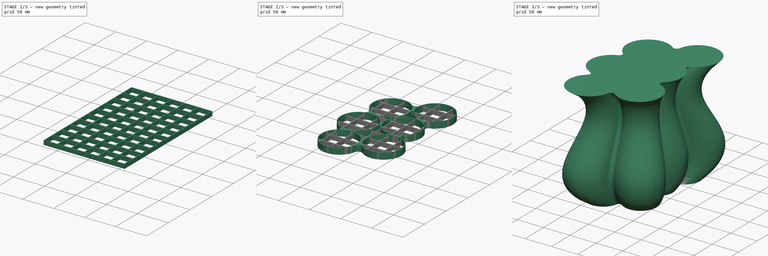
[diagram: build sequence overview — one tinted view per stage of 3, left to right]
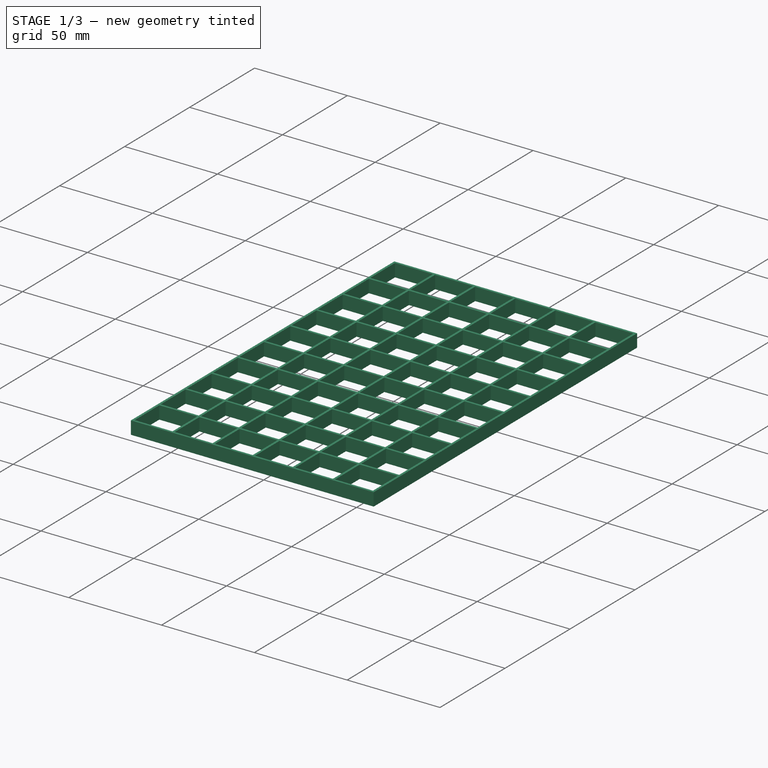
[diagram: stage 1 of 3 — iso view after this stage's code; geometry added in this stage tinted green]
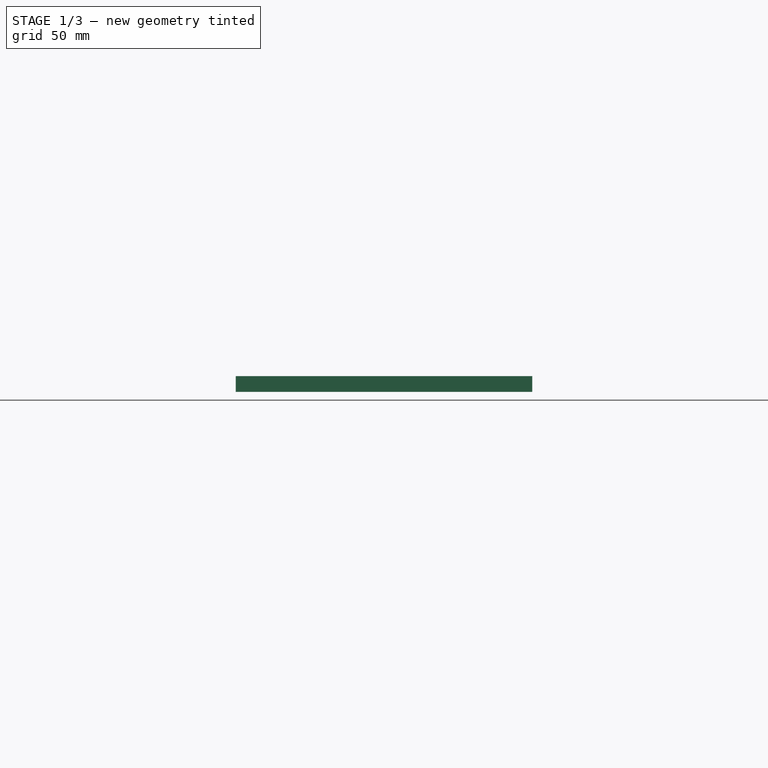
[diagram: stage 1 of 3 — front view after this stage's code; geometry added in this stage tinted green]
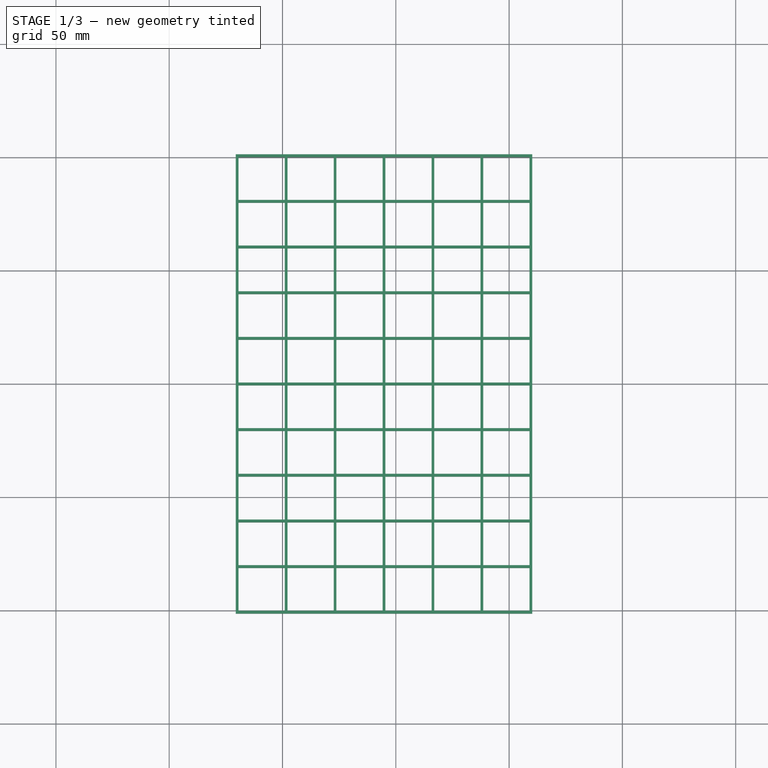
[diagram: stage 1 of 3 — top view after this stage's code; geometry added in this stage tinted green]
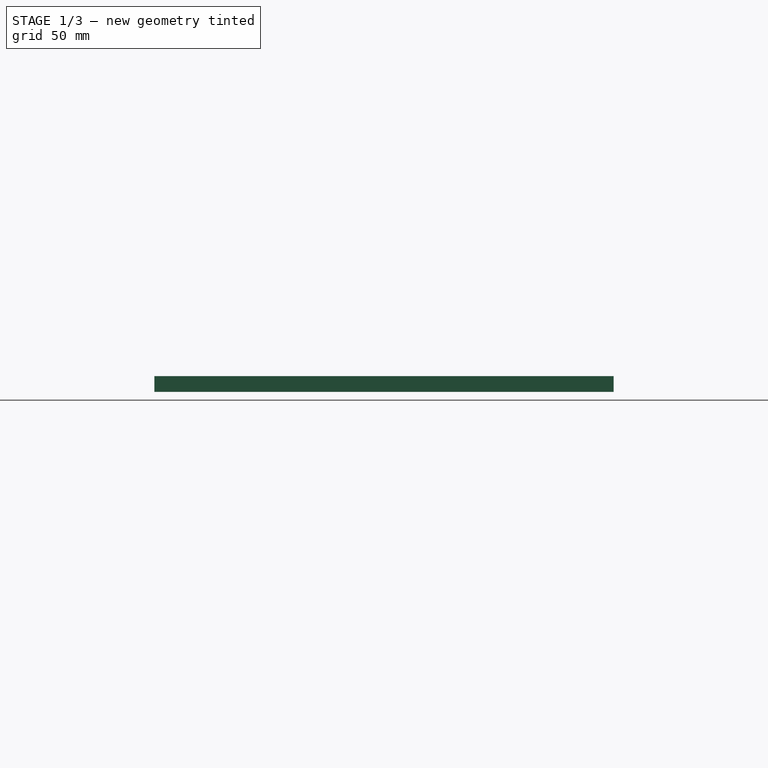
[diagram: stage 1 of 3 — right view after this stage's code; geometry added in this stage tinted green]
FCSTD DOCUMENT  (FreeCAD 0.21R33771 (Git))
Label: Vase
License: All rights reserved
LicenseURL: http://en.wikipedia.org/wiki/All_rights_reserved
objects: Sketcher::SketchObject×13, PartDesign::Body×4, PartDesign::AdditiveLoft×2, PartDesign::ShapeBinder×2, PartDesign::Pad×2, PartDesign::Pocket×2, PartDesign::LinearPattern×2, Spreadsheet::Sheet×1, PartDesign::Fillet×1, PartDesign::MultiTransform×1
note: 36 computed .brp shape members not serialized (recipe doc carries the construction recipe); baked Part::Feature solids carry a one-line shape summary decoded from their .brp

FEATURE [PartDesign::Body] Body002  label="V2Lock"
  Group = -> [ShapeBinder,Sketch009,Pad]
  Origin = -> Origin
  Tip = -> Pad
FEATURE [PartDesign::ShapeBinder] ShapeBinder001
  Support = -> [Sketch005]
  TraceSupport = false
FEATURE [Sketcher::SketchObject] Sketch011
  ExternalGeometry = -> [ShapeBinder001]
  FullyConstrained = true
  MapMode = 5
  Support = -> [XY_Plane]
  sketch-geometry (12):
    g0: LineSegment StartX=-68.6097 StartY=99.3491 StartZ=0 EndX=58.1908 EndY=99.3491 EndZ=0
    g1: LineSegment StartX=58.1908 StartY=99.3491 StartZ=0 EndX=58.1908 EndY=-99.3491 EndZ=0
    g2: LineSegment StartX=58.1908 StartY=-99.3491 StartZ=0 EndX=-68.6097 EndY=-99.3491 EndZ=0
    g3: LineSegment StartX=-68.6097 StartY=-99.3491 StartZ=0 EndX=-68.6097 EndY=99.3491 EndZ=0
    g4: LineSegment StartX=-70.6097 StartY=101.349 StartZ=0 EndX=60.1908 EndY=101.349 EndZ=0
    g5: LineSegment StartX=60.1908 StartY=101.349 StartZ=0 EndX=60.1908 EndY=-101.349 EndZ=0
    g6: LineSegment StartX=60.1908 StartY=-101.349 StartZ=0 EndX=-70.6097 EndY=-101.349 EndZ=0
    g7: LineSegment StartX=-70.6097 StartY=-101.349 StartZ=0 EndX=-70.6097 EndY=101.349 EndZ=0
    g8: LineSegment StartX=58.1908 StartY=-99.3491 StartZ=0 EndX=60.1908 EndY=-99.3491 EndZ=0
    g9: LineSegment StartX=58.1908 StartY=99.3491 StartZ=0 EndX=58.1908 EndY=101.349 EndZ=0
    g10: LineSegment StartX=-68.6097 StartY=-99.3491 StartZ=0 EndX=-68.6097 EndY=-101.349 EndZ=0
    g11: LineSegment StartX=-68.6097 StartY=99.3491 StartZ=0 EndX=-70.6097 EndY=99.3491 EndZ=0
  constraints (38):
    c: Coincident(g0,g1)
    c: Coincident(g1,g2)
    c: Coincident(g2,g3)
    c: Coincident(g3,g0)
    c: Horizontal(g0)
    c: Horizontal(g2)
    c: Vertical(g1)
    c: Vertical(g3)
    c: Tangent(g1,g-3)
    c: Tangent(g0,g-3)
    c: Tangent(g3,g-5)
    c: Tangent(g2,g-4)
    c: Coincident(g4,g5)
    c: Coincident(g5,g6)
    c: Coincident(g6,g7)
    c: Coincident(g7,g4)
    c: Horizontal(g4)
    c: Horizontal(g6)
    c: Vertical(g5)
    c: Vertical(g7)
    c: Coincident(g8,g1)
    c: PointOnObject(g8,g5)
    c: Horizontal(g8)
    c: Coincident(g9,g0)
    c: PointOnObject(g9,g4)
    c: Vertical(g9)
    c: Equal(g9,g8)
    c: Coincident(g10,g2)
    c: PointOnObject(g10,g6)
    c: Vertical(g10)
    c: Coincident(g11,g0)
    c: PointOnObject(g11,g7)
    c: Horizontal(g11)
    c: Equal(g8,g10)
    c: Equal(g10,g11)
    c: DistanceX(g4,g0) = 2
    c: DistanceX(g4,g4) = 130.8  'Width'
    c: DistanceY(g7,g7) = 202.698  'Length'
FEATURE [Sketcher::SketchObject] Sketch010
  AttachmentOffset = pos=(0,0,7) rot=(0,0,1;0rad)
  ExternalGeometry = -> [ShapeBinder001,Sketch011]
  FullyConstrained = true
  MapMode = 5
  Placement = pos=(0,0,7) rot=(0,0,1;0rad)
  Support = -> [XY_Plane]
  expr: .AttachmentOffset.Base.z = <<Pad002>>.Length
  sketch-geometry (28):
    g0: ArcOfCircle CenterX=-28.1908 CenterY=-69.3491 CenterZ=0 NormalX=0 NormalY=0 NormalZ=1 AngleXU=0 Radius=29 StartAngle=2.28643 EndAngle=6.09115
    g1: ArcOfCircle CenterX=28.1908 CenterY=-48.8279 CenterZ=0 NormalX=0 NormalY=0 NormalZ=1 AngleXU=0 Radius=29 StartAngle=4.03176 EndAngle=7.48742
    g2: ArcOfCircle CenterX=6.16586 CenterY=-76.029 CenterZ=0 NormalX=0 NormalY=0 NormalZ=1 AngleXU=0 Radius=6 StartAngle=0.890165 EndAngle=2.94956
    g3: ArcOfCircle CenterX=-38.6097 CenterY=-10.2606 CenterZ=0 NormalX=0 NormalY=0 NormalZ=1 AngleXU=0 Radius=29 StartAngle=1.93736 EndAngle=4.34582
    g4: ArcOfCircle CenterX=-28.1908 CenterY=48.8279 CenterZ=0 NormalX=0 NormalY=0 NormalZ=1 AngleXU=0 Radius=29 StartAngle=0.890165 EndAngle=3.99676
    g5: ArcOfCircle CenterX=28.1908 CenterY=69.3491 CenterZ=0 NormalX=0 NormalY=0 NormalZ=1 AngleXU=0 Radius=29 StartAngle=5.07896 EndAngle=9.23274
    g6: ArcOfCircle CenterX=17.7719 CenterY=10.2606 CenterZ=0 NormalX=0 NormalY=0 NormalZ=1 AngleXU=0 Radius=29 StartAngle=5.42802 EndAngle=7.13835
    g7: ArcOfCircle CenterX=-51.1541 CenterY=-42.9353 CenterZ=0 NormalX=0 NormalY=0 NormalZ=1 AngleXU=0 Radius=6 StartAngle=5.42802 EndAngle=7.48742
    g8: ArcOfCircle CenterX=-51.1541 CenterY=22.4141 CenterZ=0 NormalX=0 NormalY=0 NormalZ=1 AngleXU=0 Radius=6 StartAngle=5.07896 EndAngle=7.13835
    g9: ArcOfCircle CenterX=-6.16586 CenterY=76.029 CenterZ=0 NormalX=0 NormalY=0 NormalZ=1 AngleXU=0 Radius=6 StartAngle=4.03176 EndAngle=6.09115
    g10: ArcOfCircle CenterX=40.7352 CenterY=36.6743 CenterZ=0 NormalX=0 NormalY=0 NormalZ=1 AngleXU=0 Radius=6 StartAngle=1.93736 EndAngle=3.99676
    g11: ArcOfCircle CenterX=40.7352 CenterY=-16.1531 CenterZ=0 NormalX=0 NormalY=0 NormalZ=1 AngleXU=0 Radius=6 StartAngle=2.28643 EndAngle=4.34582
    g12: LineSegment StartX=36.7986 StartY=-11.6251 StartZ=0 EndX=37.4547 EndY=-12.3797 EndZ=0
    g13: LineSegment StartX=-47.8736 StartY=-46.7087 StartZ=0 EndX=-47.2175 EndY=-47.4634 EndZ=0
    g14: LineSegment StartX=0.276147 StartY=-74.8839 StartZ=0 EndX=1.25777 EndY=-75.0747 EndZ=0
    g15: LineSegment StartX=9.94156 StartY=-71.366 StartZ=0 EndX=9.31227 EndY=-72.1431 EndZ=0
    g16: LineSegment StartX=38.9431 StartY=-20.821 StartZ=0 EndX=38.5847 EndY=-21.7545 EndZ=0
    g17: LineSegment StartX=-49.362 StartY=-38.2675 StartZ=0 EndX=-49.0036 EndY=-37.3339 EndZ=0
    g18: LineSegment StartX=-49.362 StartY=17.7463 StartZ=0 EndX=-49.0036 EndY=16.8127 EndZ=0
    g19: LineSegment StartX=-47.8736 StartY=26.1875 StartZ=0 EndX=-47.2175 EndY=26.9422 EndZ=0
    g20: LineSegment StartX=-72.6097 StartY=103.349 StartZ=0 EndX=62.1908 EndY=103.349 EndZ=0
    g21: LineSegment StartX=62.1908 StartY=103.349 StartZ=0 EndX=62.1908 EndY=-103.349 EndZ=0
    g22: LineSegment StartX=62.1908 StartY=-103.349 StartZ=0 EndX=-72.6097 EndY=-103.349 EndZ=0
    g23: LineSegment StartX=-72.6097 StartY=-103.349 StartZ=0 EndX=-72.6097 EndY=103.349 EndZ=0
    g24: LineSegment StartX=60.1908 StartY=-101.349 StartZ=0 EndX=62.1908 EndY=-101.349 EndZ=0
    g25: LineSegment StartX=60.1908 StartY=101.349 StartZ=0 EndX=60.1908 EndY=103.349 EndZ=0
    g26: LineSegment StartX=-70.6097 StartY=101.349 StartZ=0 EndX=-72.6097 EndY=101.349 EndZ=0
    g27: LineSegment StartX=-70.6097 StartY=-101.349 StartZ=0 EndX=-70.6097 EndY=-103.349 EndZ=0
  constraints (70):
    c: Coincident(g0,g-7)
    c: Distance(g-12,g0) = 1
    c: Equal(g0,g1)
    c: Tangent(g2,g1) = 1.5708
    c: Equal(g1,g6)
    c: Equal(g6,g5)
    c: Equal(g5,g4)
    c: Equal(g4,g3)
    c: Coincident(g7,g-12)
    c: Coincident(g8,g-11)
    c: Coincident(g9,g-9)
    c: Coincident(g10,g-10)
    c: Coincident(g11,g-13)
    c: Tangent(g6,g10) = 1.5708
    c: Tangent(g5,g10) = 1.5708
    c: Tangent(g6,g11) = 1.5708
    c: Tangent(g1,g11) = 1.5708
    c: Coincident(g12,g6)
    c: Coincident(g12,g-13)
    c: Tangent(g0,g7) = 1.5708
    c: Tangent(g3,g7) = 1.5708
    c: Coincident(g13,g-12)
    c: Coincident(g13,g0)
    c: Tangent(g0,g2) = 1.5708
    c: Coincident(g14,g0)
    c: Coincident(g14,g-14)
    c: PointOnObject(g2,g14)
    c: Coincident(g15,g1)
    c: Coincident(g15,g-14)
    c: PointOnObject(g2,g15)
    c: Equal(g15,g14)
    c: Coincident(g16,g-13)
    c: Coincident(g16,g1)
    c: PointOnObject(g6,g12)
    c: Tangent(g5,g9) = 1.5708
    c: Tangent(g4,g9) = 1.5708
    c: Tangent(g4,g8) = 1.5708
    c: Tangent(g3,g8) = 1.5708
    c: Coincident(g17,g-12)
    c: Coincident(g17,g3)
    c: PointOnObject(g7,g17)
    c: Coincident(g18,g-11)
    c: Coincident(g18,g3)
    c: Coincident(g19,g-11)
    c: Coincident(g19,g4)
    c: PointOnObject(g8,g19)
    c: Coincident(g20,g21)
    c: Coincident(g21,g22)
    c: Coincident(g22,g23)
    c: Coincident(g23,g20)
    c: Horizontal(g20)
    c: Horizontal(g22)
    c: Vertical(g21)
    c: Vertical(g23)
    c: Coincident(g24,g-17)
    c: PointOnObject(g24,g21)
    c: Horizontal(g24)
    c: Coincident(g25,g-16)
    c: PointOnObject(g25,g20)
    c: Vertical(g25)
    c: Coincident(g26,g-18)
    c: PointOnObject(g26,g23)
    c: Horizontal(g26)
    c: Coincident(g27,g-18)
    c: PointOnObject(g27,g22)
    c: Vertical(g27)
    c: Equal(g27,g24)
    c: Equal(g24,g25)
    c: Equal(g25,g26)
    c: DistanceX(g25,g20) = 2
FEATURE [PartDesign::Pad] Pad002
  Direction = (0,0,1)
  Length = 7
  Length2 = 10
  Profile = -> Sketch011
  ReferenceAxis = -> Sketch011 [N_Axis]
  Type = 0
FEATURE [Sketcher::SketchObject] Sketch012
  AttachmentOffset = pos=(0,0,7) rot=(0,0,1;0rad)
  ExternalGeometry = -> [Sketch011]
  FullyConstrained = true
  MapMode = 5
  Placement = pos=(0,0,7) rot=(0,0,1;0rad)
  Support = -> [XY_Plane]
  expr: .AttachmentOffset.Base.z = <<Pad002>>.Length
  expr: .Constraints.Length = (<<Sketch011>>.Constraints.Length - <<Spreadsheet>>.GridThickness * (<<Spreadsheet>>.GridY + 1)) / <<Spreadsheet>>.GridY
  expr: .Constraints.Width = (<<Sketch011>>.Constraints.Width - <<Spreadsheet>>.GridThickness * (<<Spreadsheet>>.GridX + 1)) / <<Spreadsheet>>.GridX
  expr: Constraints[15] = <<Spreadsheet>>.GridThickness
  sketch-geometry (6):
    g0: LineSegment StartX=-69.4097 StartY=100.149 StartZ=0 EndX=-49.0096 EndY=100.149 EndZ=0
    g1: LineSegment StartX=-49.0096 StartY=100.149 StartZ=0 EndX=-49.0096 EndY=81.1993 EndZ=0
    g2: LineSegment StartX=-49.0096 StartY=81.1993 StartZ=0 EndX=-69.4097 EndY=81.1993 EndZ=0
    g3: LineSegment StartX=-69.4097 StartY=81.1993 StartZ=0 EndX=-69.4097 EndY=100.149 EndZ=0
    g4: LineSegment StartX=-49.0096 StartY=100.149 StartZ=0 EndX=-49.0096 EndY=101.349 EndZ=0
    g5: LineSegment StartX=-69.4097 StartY=81.1993 StartZ=0 EndX=-70.6097 EndY=81.1993 EndZ=0
  constraints (18):
    c: Coincident(g0,g1)
    c: Coincident(g1,g2)
    c: Coincident(g2,g3)
    c: Coincident(g3,g0)
    c: Horizontal(g0)
    c: Horizontal(g2)
    c: Vertical(g1)
    c: Vertical(g3)
    c: Coincident(g4,g0)
    c: PointOnObject(g4,g-3)
    c: Vertical(g4)
    c: Coincident(g5,g2)
    c: PointOnObject(g5,g-4)
    c: Horizontal(g5)
    c: Equal(g4,g5)
    c: DistanceX(g-4,g0) = 1.2
    c: DistanceX(g0,g0) = 20.4001  'Width'
    c: DistanceY(g3,g3) = 18.9498  'Length'
FEATURE [PartDesign::Pocket] Pocket
  BaseFeature = -> Pad002
  Direction = (0,0,-1)
  Length = 5
  Length2 = 5
  Profile = -> Sketch012
  ReferenceAxis = -> Sketch012 [N_Axis]
  Type = 1
FEATURE [PartDesign::LinearPattern] LinearPattern
  Direction = -> Sketch012 [H_Axis]
  Length = 108
  Occurrences = 6
  expr: Length = <<Sketch011>>.Constraints.Width - <<Sketch012>>.Constraints.Width - <<Spreadsheet>>.GridThickness * 2
  expr: Occurrences = <<Spreadsheet>>.GridX
FEATURE [PartDesign::LinearPattern] LinearPattern001
  Direction = -> Sketch012 [V_Axis]
  Length = 181.348
  Occurrences = 10
  Reversed = true
  expr: Length = <<Sketch011>>.Constraints.Length - <<Sketch012>>.Constraints.Length - <<Spreadsheet>>.GridThickness * 2
  expr: Occurrences = <<Spreadsheet>>.GridY
FEATURE [PartDesign::MultiTransform] MultiTransform
  BaseFeature = -> Pocket
  Originals = -> [Pocket]
  Transformations = -> [LinearPattern,LinearPattern001]
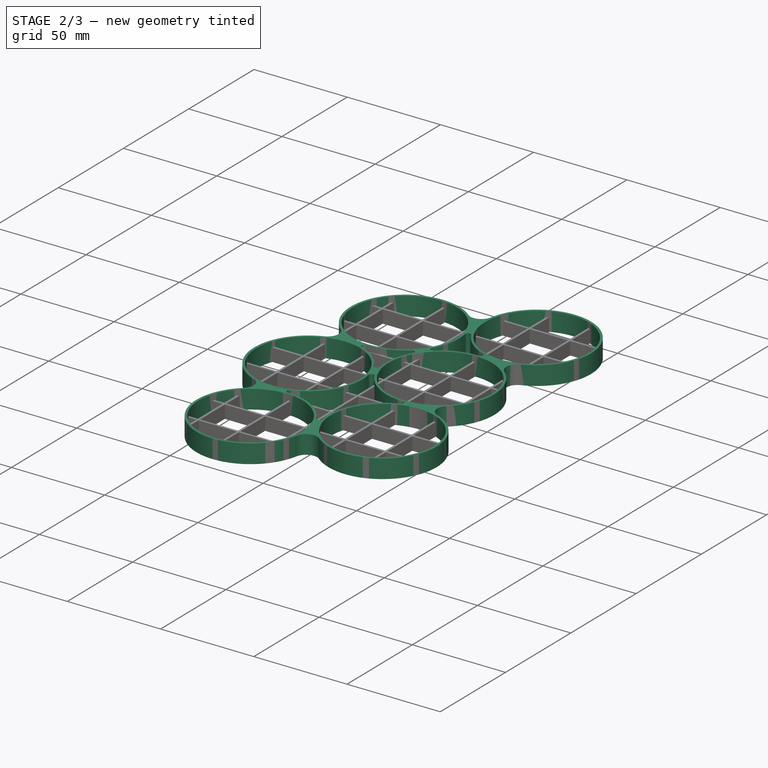
[diagram: stage 2 of 3 — iso view after this stage's code; geometry added in this stage tinted green]
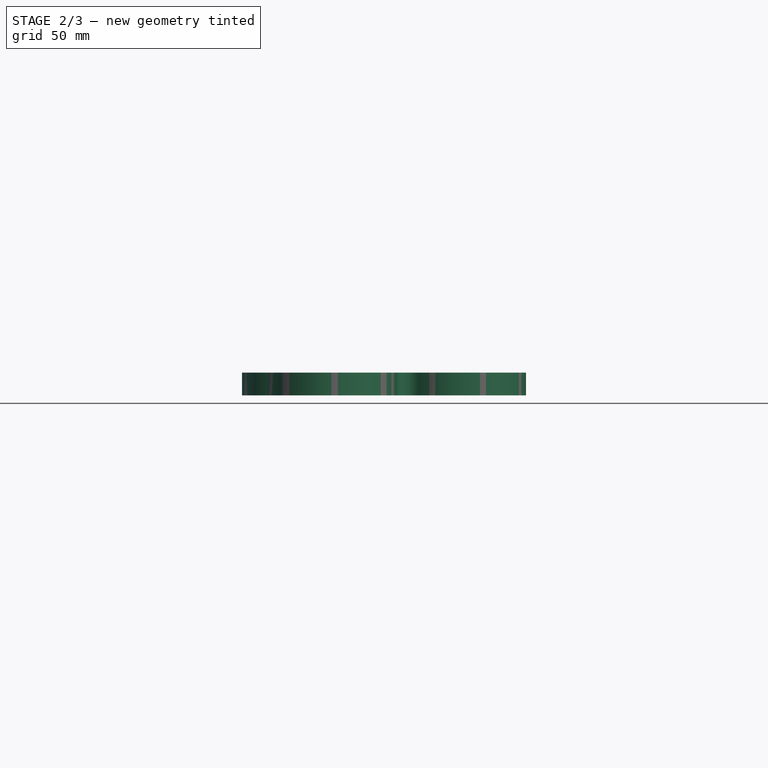
[diagram: stage 2 of 3 — front view after this stage's code; geometry added in this stage tinted green]
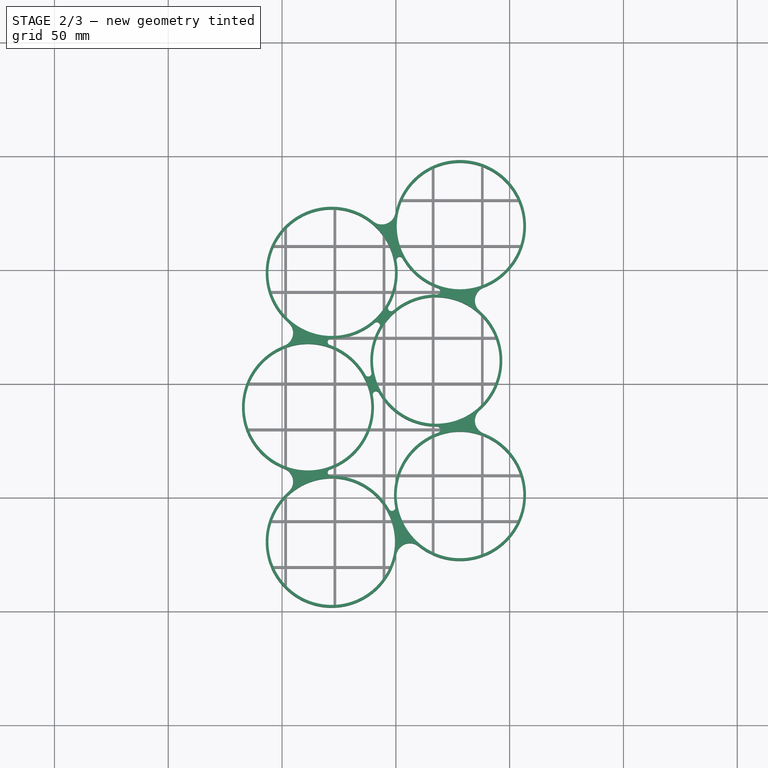
[diagram: stage 2 of 3 — top view after this stage's code; geometry added in this stage tinted green]
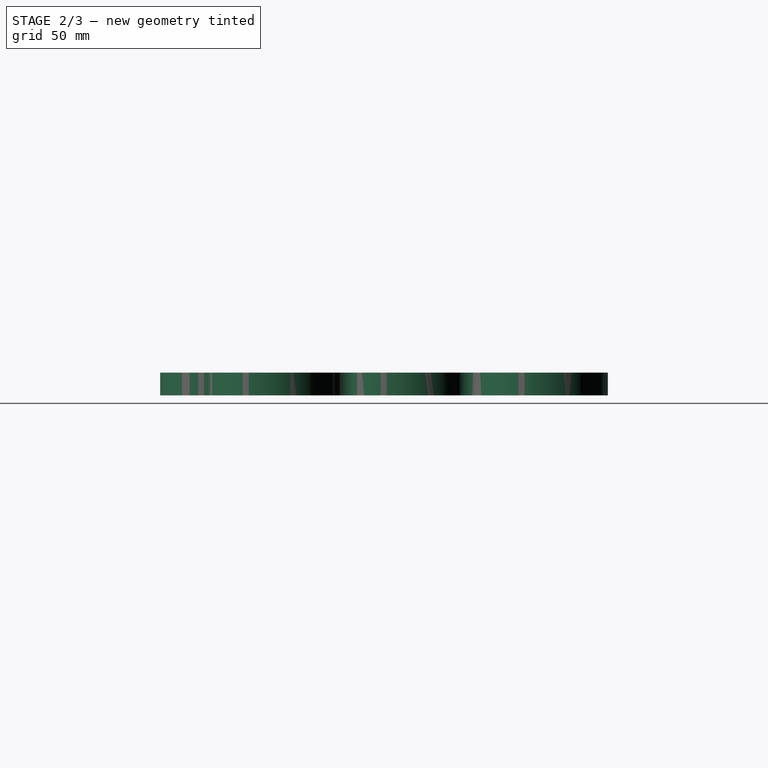
[diagram: stage 2 of 3 — right view after this stage's code; geometry added in this stage tinted green]
FEATURE [PartDesign::Body] Body001  label="Vase2"
  Group = -> [Sketch005,Sketch006,Sketch007,Sketch008,AdditiveLoft001]
  Origin = -> Origin003
  Tip = -> AdditiveLoft001
FEATURE [PartDesign::ShapeBinder] ShapeBinder
  Support = -> [Sketch005]
  TraceSupport = false
FEATURE [Sketcher::SketchObject] Sketch009
  ExternalGeometry = -> [ShapeBinder]
  FullyConstrained = true
  MapMode = 5
  Support = -> [XY_Plane]
  sketch-geometry (53):
    g0: ArcOfCircle CenterX=-28.1908 CenterY=-69.3491 CenterZ=0 NormalX=0 NormalY=0 NormalZ=1 AngleXU=0 Radius=29 StartAngle=2.28643 EndAngle=6.09115
    g1: ArcOfCircle CenterX=28.1908 CenterY=-48.8279 CenterZ=0 NormalX=0 NormalY=0 NormalZ=1 AngleXU=0 Radius=29 StartAngle=4.03176 EndAngle=7.48742
    g2: LineSegment StartX=38.9431 StartY=-20.821 StartZ=0 EndX=28.1908 EndY=-48.8279 EndZ=0
    g3: LineSegment StartX=28.1908 StartY=-48.8279 StartZ=0 EndX=9.31227 EndY=-72.1431 EndZ=0
    g4: LineSegment StartX=-28.1908 StartY=-69.3491 StartZ=0 EndX=-47.8736 EndY=-46.7087 EndZ=0
    g5: LineSegment StartX=-28.1908 StartY=-69.3491 StartZ=0 EndX=1.25777 EndY=-75.0747 EndZ=0
    g6: ArcOfCircle CenterX=6.16586 CenterY=-76.029 CenterZ=0 NormalX=0 NormalY=0 NormalZ=1 AngleXU=0 Radius=6 StartAngle=0.890165 EndAngle=2.94956
    g7: LineSegment StartX=17.7719 StartY=10.2606 StartZ=0 EndX=37.4547 EndY=32.901 EndZ=0
    g8: LineSegment StartX=17.7719 StartY=10.2606 StartZ=0 EndX=37.4547 EndY=-12.3797 EndZ=0
    g9: LineSegment StartX=28.1908 StartY=69.3491 StartZ=0 EndX=-1.25777 EndY=75.0747 EndZ=0
    g10: LineSegment StartX=28.1908 StartY=69.3491 StartZ=0 EndX=38.9431 EndY=41.3422 EndZ=0
    g11: LineSegment StartX=-28.1908 StartY=48.8279 StartZ=0 EndX=-9.31227 EndY=72.1431 EndZ=0
    g12: LineSegment StartX=-28.1908 StartY=48.8279 StartZ=0 EndX=-47.8736 EndY=26.1875 EndZ=0
    g13: LineSegment StartX=-38.6097 StartY=-10.2606 StartZ=0 EndX=-49.362 EndY=17.7463 EndZ=0
    g14: LineSegment StartX=-38.6097 StartY=-10.2606 StartZ=0 EndX=-49.362 EndY=-38.2675 EndZ=0
    g15: ArcOfCircle CenterX=-38.6097 CenterY=-10.2606 CenterZ=0 NormalX=0 NormalY=0 NormalZ=1 AngleXU=0 Radius=29 StartAngle=1.93736 EndAngle=4.34582
    g16: ArcOfCircle CenterX=-28.1908 CenterY=48.8279 CenterZ=0 NormalX=0 NormalY=0 NormalZ=1 AngleXU=0 Radius=29 StartAngle=0.890165 EndAngle=3.99676
    g17: ArcOfCircle CenterX=28.1908 CenterY=69.3491 CenterZ=0 NormalX=0 NormalY=0 NormalZ=1 AngleXU=0 Radius=29 StartAngle=5.07896 EndAngle=9.23274
    g18: ArcOfCircle CenterX=17.7719 CenterY=10.2606 CenterZ=0 NormalX=0 NormalY=0 NormalZ=1 AngleXU=0 Radius=29 StartAngle=5.42802 EndAngle=7.13835
    g19: ArcOfCircle CenterX=-51.1541 CenterY=-42.9353 CenterZ=0 NormalX=0 NormalY=0 NormalZ=1 AngleXU=0 Radius=6 StartAngle=5.42802 EndAngle=7.48742
    g20: ArcOfCircle CenterX=-51.1541 CenterY=22.4141 CenterZ=0 NormalX=0 NormalY=0 NormalZ=1 AngleXU=0 Radius=6 StartAngle=5.07896 EndAngle=7.13835
    g21: ArcOfCircle CenterX=-6.16586 CenterY=76.029 CenterZ=0 NormalX=0 NormalY=0 NormalZ=1 AngleXU=0 Radius=6 StartAngle=4.03176 EndAngle=6.09115
    g22: ArcOfCircle CenterX=40.7352 CenterY=36.6743 CenterZ=0 NormalX=0 NormalY=0 NormalZ=1 AngleXU=0 Radius=6 StartAngle=1.93736 EndAngle=3.99676
    g23: ArcOfCircle CenterX=40.7352 CenterY=-16.1531 CenterZ=0 NormalX=0 NormalY=0 NormalZ=1 AngleXU=0 Radius=6 StartAngle=2.28643 EndAngle=4.34582
    g24: Circle CenterX=-28.1908 CenterY=-69.3491 CenterZ=0 NormalX=0 NormalY=0 NormalZ=1 AngleXU=0 Radius=27.8
    g25: GeomPoint X=-46.4302 Y=-48.369 Z=0
    g26: Circle CenterX=-38.6097 CenterY=-10.2606 CenterZ=0 NormalX=0 NormalY=0 NormalZ=1 AngleXU=0 Radius=27.8
    g27: Circle CenterX=28.1908 CenterY=-48.8279 CenterZ=0 NormalX=0 NormalY=0 NormalZ=1 AngleXU=0 Radius=27.8
    g28: Circle CenterX=17.7719 CenterY=10.2606 CenterZ=0 NormalX=0 NormalY=0 NormalZ=1 AngleXU=0 Radius=27.8
    g29: Circle CenterX=-28.1908 CenterY=48.8279 CenterZ=0 NormalX=0 NormalY=0 NormalZ=1 AngleXU=0 Radius=27.8
    g30: Circle CenterX=28.1908 CenterY=69.3491 CenterZ=0 NormalX=0 NormalY=0 NormalZ=1 AngleXU=0 Radius=27.8
    g31: ArcOfCircle CenterX=-28.1908 CenterY=48.8279 CenterZ=0 NormalX=0 NormalY=0 NormalZ=1 AngleXU=0 Radius=29 StartAngle=5.74745 EndAngle=6.46985
    g32: ArcOfCircle CenterX=28.1908 CenterY=69.3491 CenterZ=0 NormalX=0 NormalY=0 NormalZ=1 AngleXU=0 Radius=29 StartAngle=3.65306 EndAngle=4.37546
    g33: ArcOfCircle CenterX=17.7719 CenterY=10.2606 CenterZ=0 NormalX=0 NormalY=0 NormalZ=1 AngleXU=0 Radius=29 StartAngle=1.55866 EndAngle=2.28106
    g34: ArcOfCircle CenterX=-38.6097 CenterY=-10.2606 CenterZ=0 NormalX=0 NormalY=0 NormalZ=1 AngleXU=0 Radius=29 StartAngle=0.511466 EndAngle=1.23386
    g35: ArcOfCircle CenterX=17.7719 CenterY=10.2606 CenterZ=0 NormalX=0 NormalY=0 NormalZ=1 AngleXU=0 Radius=29 StartAngle=3.65306 EndAngle=4.72452
    g36: ArcOfCircle CenterX=28.1908 CenterY=-48.8279 CenterZ=0 NormalX=0 NormalY=0 NormalZ=1 AngleXU=0 Radius=29 StartAngle=1.90773 EndAngle=3.32826
    g37: ArcOfCircle CenterX=-28.1908 CenterY=-69.3491 CenterZ=0 NormalX=0 NormalY=0 NormalZ=1 AngleXU=0 Radius=29 StartAngle=0.511466 EndAngle=1.58293
    g38: ArcOfCircle CenterX=-38.6097 CenterY=-10.2606 CenterZ=0 NormalX=0 NormalY=0 NormalZ=1 AngleXU=0 Radius=29 StartAngle=5.04932 EndAngle=6.46985
    g39: LineSegment StartX=-28.1908 StartY=48.8279 StartZ=0 EndX=28.1908 EndY=69.3491 EndZ=0
    g40: ArcOfCircle CenterX=1.68113 CenterY=54.4696 CenterZ=0 NormalX=0 NormalY=0 NormalZ=1 AngleXU=0 Radius=1.4 StartAngle=0.511466 EndAngle=3.32826
    g41: LineSegment StartX=28.1908 StartY=69.3491 StartZ=0 EndX=17.7719 EndY=10.2606 EndZ=0
    g42: ArcOfCircle CenterX=18.1407 CenterY=40.6584 CenterZ=0 NormalX=0 NormalY=0 NormalZ=1 AngleXU=0 Radius=1.4 StartAngle=4.70026 EndAngle=7.51705
    g43: ArcOfCircle CenterX=-28.5596 CenterY=18.4301 CenterZ=0 NormalX=0 NormalY=0 NormalZ=1 AngleXU=0 Radius=1.4 StartAngle=1.55866 EndAngle=4.37546
    g44: ArcOfCircle CenterX=-12.1 CenterY=4.61885 CenterZ=0 NormalX=0 NormalY=0 NormalZ=1 AngleXU=0 Radius=1.4 StartAngle=3.65306 EndAngle=6.46985
    g45: ArcOfCircle CenterX=-8.73777 CenterY=-4.61885 CenterZ=0 NormalX=0 NormalY=0 NormalZ=1 AngleXU=0 Radius=1.4 StartAngle=0.511466 EndAngle=3.32826
    g46: ArcOfCircle CenterX=18.1407 CenterY=-20.1372 CenterZ=0 NormalX=0 NormalY=0 NormalZ=1 AngleXU=0 Radius=1.4 StartAngle=5.04932 EndAngle=7.86611
    g47: ArcOfCircle CenterX=-1.68113 CenterY=-54.4696 CenterZ=0 NormalX=0 NormalY=0 NormalZ=1 AngleXU=0 Radius=1.4 StartAngle=3.65306 EndAngle=6.46985
    g48: ArcOfCircle CenterX=-28.5596 CenterY=-38.9513 CenterZ=0 NormalX=0 NormalY=0 NormalZ=1 AngleXU=0 Radius=1.4 StartAngle=1.90773 EndAngle=4.72452
    g49: ArcOfCircle CenterX=-2.04996 CenterY=33.3096 CenterZ=0 NormalX=0 NormalY=0 NormalZ=1 AngleXU=0 Radius=1.4 StartAngle=2.60586 EndAngle=5.42265
    g50: ArcOfCircle CenterX=-28.1908 CenterY=48.8279 CenterZ=0 NormalX=0 NormalY=0 NormalZ=1 AngleXU=0 Radius=29 StartAngle=4.70026 EndAngle=5.42265
    g51: ArcOfCircle CenterX=17.7719 CenterY=10.2606 CenterZ=0 NormalX=0 NormalY=0 NormalZ=1 AngleXU=0 Radius=29 StartAngle=2.60586 EndAngle=3.32826
    g52: ArcOfCircle CenterX=-8.36893 CenterY=25.7789 CenterZ=0 NormalX=0 NormalY=0 NormalZ=1 AngleXU=0 Radius=1.4 StartAngle=5.74745 EndAngle=8.56425
  constraints (133):
    c: Coincident(g0,g-7)
    c: Coincident(g1,g-6)
    c: Coincident(g2,g-13)
    c: Coincident(g2,g1)
    c: Coincident(g3,g1)
    c: Coincident(g3,g-14)
    c: Coincident(g4,g0)
    c: Coincident(g4,g-12)
    c: Coincident(g5,g0)
    c: Coincident(g5,g-14)
    c: PointOnObject(g0,g5)
    c: PointOnObject(g0,g4)
    c: Distance(g4,g0) = 1
    c: Equal(g0,g1)
    c: PointOnObject(g1,g3)
    c: PointOnObject(g1,g2)
    c: Coincident(g6,g0)
    c: Tangent(g6,g1) = 1.5708
    c: Coincident(g7,g-5)
    c: Coincident(g7,g-10)
    c: Coincident(g8,g7)
    c: Coincident(g8,g-13)
    c: Coincident(g9,g-4)
    c: Coincident(g9,g-9)
    c: Coincident(g10,g9)
    c: Coincident(g10,g-10)
    c: Coincident(g11,g-3)
    c: Coincident(g11,g-9)
    c: Coincident(g12,g11)
    c: Coincident(g12,g-11)
    c: Coincident(g13,g-8)
    c: Coincident(g13,g-11)
    c: Coincident(g14,g13)
    c: Coincident(g14,g-12)
    c: Coincident(g15,g13)
    c: PointOnObject(g15,g13)
    c: PointOnObject(g15,g14)
    c: Coincident(g16,g11)
    c: PointOnObject(g16,g11)
    c: PointOnObject(g16,g12)
    c: Coincident(g17,g9)
    c: PointOnObject(g17,g9)
    c: PointOnObject(g17,g10)
    c: Coincident(g18,g7)
    c: PointOnObject(g18,g7)
    c: PointOnObject(g18,g8)
    c: Equal(g1,g18)
    c: Equal(g18,g17)
    c: Equal(g17,g16)
    c: Equal(g16,g15)
    c: Coincident(g19,g-12)
    c: Coincident(g19,g15)
    c: PointOnObject(g19,g4)
    c: Coincident(g20,g-11)
    c: Coincident(g20,g16)
    c: PointOnObject(g20,g13)
    c: Coincident(g21,g-9)
    c: Coincident(g21,g16)
    c: PointOnObject(g21,g9)
    c: Coincident(g22,g-10)
    c: Coincident(g22,g17)
    c: PointOnObject(g22,g7)
    c: Coincident(g23,g-13)
    c: Coincident(g23,g18)
    c: PointOnObject(g23,g2)
    c: Coincident(g24,g0)
    c: PointOnObject(g25,g24)
    c: PointOnObject(g25,g4)
    c: Distance(g0,g25) = 1.2
    c: Coincident(g26,g15)
    c: Coincident(g27,g1)
    c: Coincident(g28,g18)
    c: Coincident(g29,g16)
    c: Coincident(g30,g17)
    c: Equal(g27,g28)
    c: Equal(g28,g30)
    c: Equal(g30,g29)
    c: Coincident(g31,g16)
    c: Coincident(g32,g17)
    c: Coincident(g33,g18)
    c: Coincident(g34,g15)
    c: Coincident(g35,g18)
    c: Coincident(g36,g1)
    c: Coincident(g37,g0)
    c: Coincident(g38,g15)
    c: Equal(g16,g31)
    c: Equal(g31,g32)
    c: Equal(g32,g33)
    c: Coincident(g39,g16)
    c: Coincident(g39,g17)
    c: Coincident(g41,g17)
    c: Coincident(g41,g18)
    c: Tangent(g31,g40) = 1.5708
    c: Tangent(g32,g40) = 1.5708
    c: Radius(g40) = 1.4
    c: Tangent(g32,g42) = 1.5708
    c: Tangent(g33,g42) = 1.5708
    c: Equal(g42,g40)
    c: Tangent(g34,g44) = 1.5708
    c: Tangent(g34,g43) = 1.5708
    c: Tangent(g38,g48) = 1.5708
    c: Tangent(g37,g48) = 1.5708
    c: Tangent(g37,g47) = 1.5708
    c: Tangent(g36,g47) = 1.5708
    c: Tangent(g36,g46) = 1.5708
    c: Tangent(g35,g46) = 1.5708
    c: Tangent(g38,g45) = 1.5708
    c: Tangent(g35,g45) = 1.5708
    c: Tangent(g33,g49) = 1.5708
    c: Tangent(g31,g49) = 1.5708
    c: Equal(g42,g49)
    c: Coincident(g50,g16)
    c: Coincident(g51,g18)
    c: Tangent(g43,g50) = 1.5708
    c: Tangent(g44,g51) = 1.5708
    c: Tangent(g51,g52) = 1.5708
    c: Tangent(g50,g52) = 1.5708
    c: Equal(g33,g50)
    c: Equal(g50,g34)
    c: Equal(g34,g51)
    c: Equal(g49,g52)
    c: Equal(g52,g43)
    c: Equal(g43,g44)
    c: Equal(g51,g35)
    c: Equal(g35,g36)
    c: Equal(g36,g37)
    c: Equal(g37,g38)
    c: Equal(g24,g27)
    c: Equal(g29,g26)
    c: Equal(g44,g45)
    c: Equal(g45,g46)
    c: Equal(g46,g47)
    c: Equal(g47,g48)
FEATURE [PartDesign::Pad] Pad
  Direction = (0,0,1)
  Length = 10
  Length2 = 10
  Profile = -> Sketch009
  ReferenceAxis = -> Sketch009 [N_Axis]
  Type = 0
FEATURE [PartDesign::Pocket] Pocket001
  BaseFeature = -> MultiTransform
  Direction = (0,0,-1)
  Length = 5
  Length2 = 5
  Profile = -> Sketch010
  ReferenceAxis = -> Sketch010 [N_Axis]
  Type = 1
FEATURE [PartDesign::Body] Body003  label="V2GridLock"
  Group = -> [ShapeBinder001,Sketch011,Pad002,Sketch012,Pocket,MultiTransform,LinearPattern,LinearPattern001,Sketch010,Pocket001]
  Origin = -> Origin004
  Tip = -> Pocket001
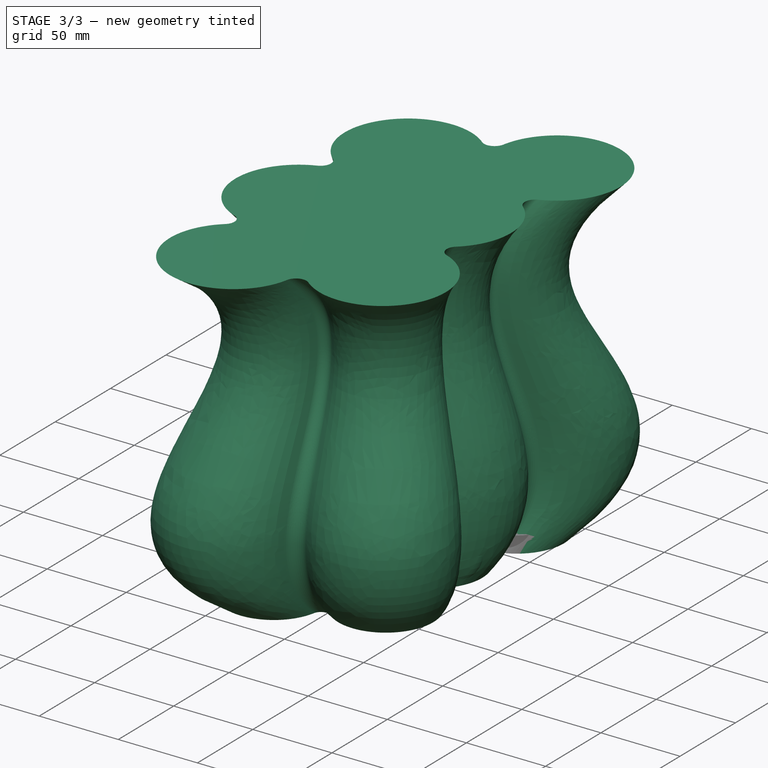
[diagram: stage 3 of 3 — iso view after this stage's code; geometry added in this stage tinted green]
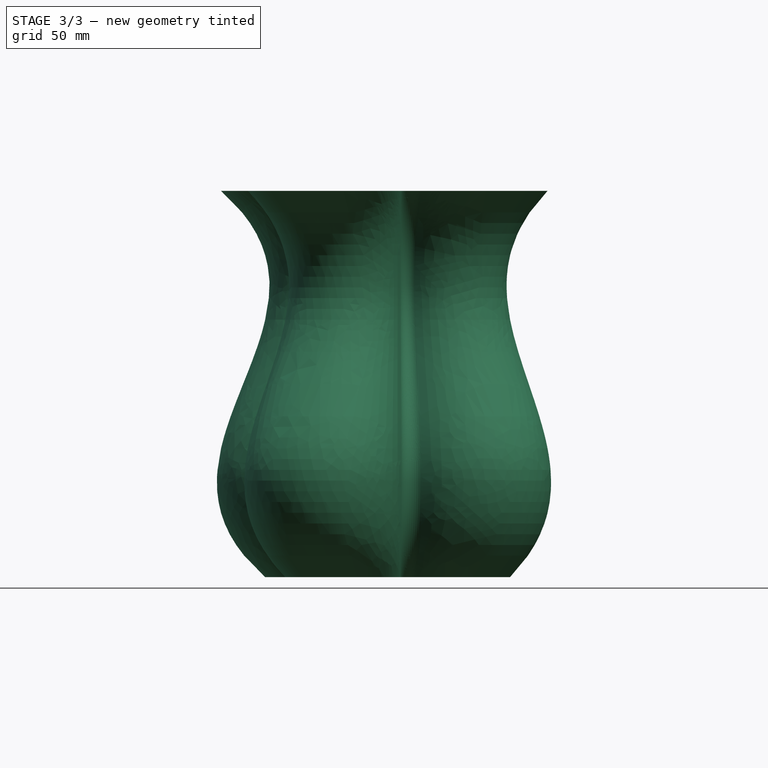
[diagram: stage 3 of 3 — front view after this stage's code; geometry added in this stage tinted green]
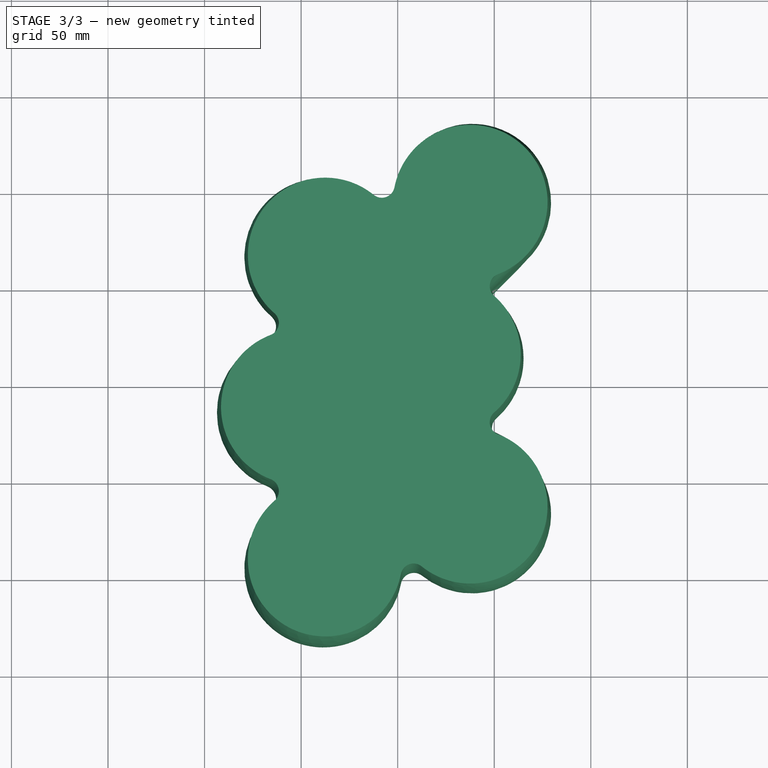
[diagram: stage 3 of 3 — top view after this stage's code; geometry added in this stage tinted green]
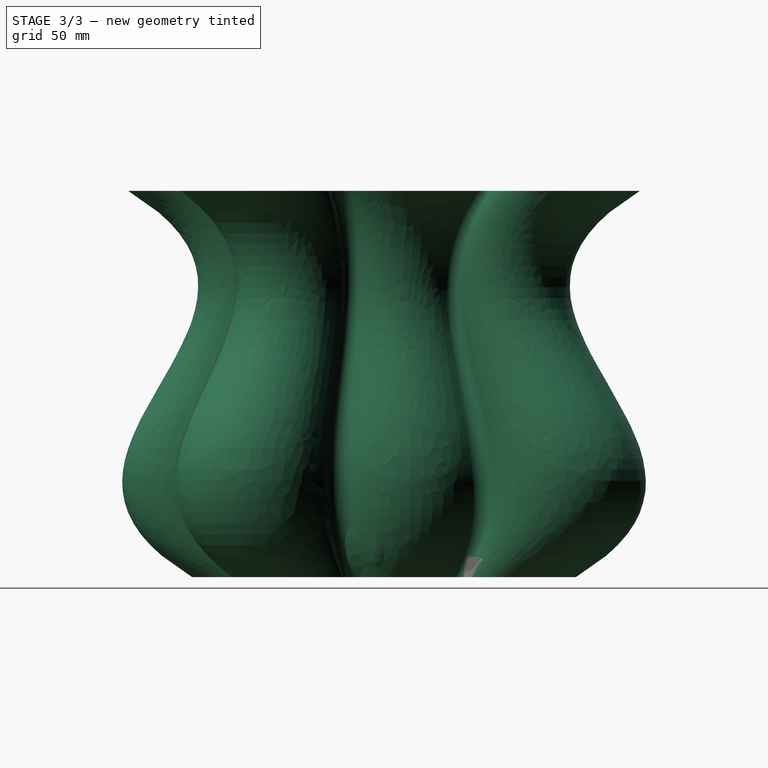
[diagram: stage 3 of 3 — right view after this stage's code; geometry added in this stage tinted green]
FEATURE [Sketcher::SketchObject] Sketch
  FullyConstrained = true
  MapMode = 5
  Support = -> [XY_Plane001]
  expr: .Constraints.Ro = Spreadsheet.Radius
  expr: Constraints[56] = .Constraints.Ro / 10 * 5.5
  expr: Constraints[6] = .Constraints.Ro / 10 * 7.5
  expr: Constraints[81] = .Constraints.Ro / 2
  sketch-geometry (55):
    g0: LineSegment StartX=0 StartY=60 StartZ=0 EndX=0 EndY=-60 EndZ=0
    g1: LineSegment StartX=-60 StartY=0 StartZ=0 EndX=60 EndY=0 EndZ=0
    g2: Circle CenterX=0 CenterY=0 CenterZ=0 NormalX=0 NormalY=0 NormalZ=1 AngleXU=0 Radius=45
    g3: Circle CenterX=0 CenterY=0 CenterZ=0 NormalX=0 NormalY=0 NormalZ=1 AngleXU=0 Radius=60
    g4: LineSegment StartX=-42.4264 StartY=-42.4264 StartZ=0 EndX=42.4264 EndY=42.4264 EndZ=0
    g5: LineSegment StartX=-42.4264 StartY=42.4264 StartZ=0 EndX=42.4264 EndY=-42.4264 EndZ=0
    g6: LineSegment StartX=-42.4264 StartY=42.4264 StartZ=0 EndX=-60 EndY=0 EndZ=0
    g7: LineSegment StartX=-60 StartY=0 StartZ=0 EndX=-42.4264 EndY=-42.4264 EndZ=0
    g8: LineSegment StartX=-42.4264 StartY=-42.4264 StartZ=0 EndX=0 EndY=-60 EndZ=0
    g9: LineSegment StartX=0 StartY=-60 StartZ=0 EndX=42.4264 EndY=-42.4264 EndZ=0
    g10: LineSegment StartX=42.4264 StartY=-42.4264 StartZ=0 EndX=60 EndY=0 EndZ=0
    g11: LineSegment StartX=60 StartY=0 StartZ=0 EndX=42.4264 EndY=42.4264 EndZ=0
    g12: LineSegment StartX=42.4264 StartY=42.4264 StartZ=0 EndX=0 EndY=60 EndZ=0
    g13: LineSegment StartX=0 StartY=60 StartZ=0 EndX=-42.4264 EndY=42.4264 EndZ=0
    g14-g18: Circle x5 (B-spline internal-alignment scaffolding for g19; pole/knot coordinates omitted)
    g19: BSplineCurve PolesCount=5 KnotsCount=3 Degree=3 IsPeriodic=0
    g20: GeomPoint X=-31.8198 Y=31.8198 Z=0
    g21: GeomPoint X=2.558e-13 Y=44.6969 Z=0
    g22: GeomPoint X=31.8198 Y=31.8198 Z=0
    g23: Circle CenterX=0 CenterY=0 CenterZ=0 NormalX=0 NormalY=0 NormalZ=1 AngleXU=0 Radius=33
    g24: LineSegment StartX=-15 StartY=29.3939 StartZ=0 EndX=15 EndY=29.3939 EndZ=0
    g25-g29: Circle x5 (B-spline internal-alignment scaffolding for g30; pole/knot coordinates omitted)
    g30: BSplineCurve PolesCount=5 KnotsCount=3 Degree=3 IsPeriodic=0
    g31: GeomPoint X=-31.8198 Y=31.8198 Z=0
    g32: GeomPoint X=-44.6969 Y=4.4e-15 Z=0
    g33: GeomPoint X=-31.8198 Y=-31.8198 Z=0
    g34: LineSegment StartX=-29.3939 StartY=15 StartZ=0 EndX=-29.3939 EndY=-15 EndZ=0
    g35-g39: Circle x5 (B-spline internal-alignment scaffolding for g40; pole/knot coordinates omitted)
    g40: BSplineCurve PolesCount=5 KnotsCount=3 Degree=3 IsPeriodic=0
    g41: GeomPoint X=-31.8198 Y=-31.8198 Z=0
    g42: GeomPoint X=-1.8e-15 Y=-44.6969 Z=0
    g43: GeomPoint X=31.8198 Y=-31.8198 Z=0
    g44: LineSegment StartX=-15 StartY=-29.3939 StartZ=0 EndX=15 EndY=-29.3939 EndZ=0
    g45-g49: Circle x5 (B-spline internal-alignment scaffolding for g50; pole/knot coordinates omitted)
    g50: BSplineCurve PolesCount=5 KnotsCount=3 Degree=3 IsPeriodic=0
    g51: GeomPoint X=31.8198 Y=-31.8198 Z=0
    g52: GeomPoint X=44.6969 Y=-2.7e-15 Z=0
    g53: GeomPoint X=31.8198 Y=31.8198 Z=0
    g54: LineSegment StartX=29.3939 StartY=15 StartZ=0 EndX=29.3939 EndY=-15 EndZ=0
  constraints (114):
    c: Vertical(g0)
    c: Horizontal(g1)
    c: PointOnObject(g2,g1)
    c: PointOnObject(g2,g0)
    c: Coincident(g3,g2)
    c: PointOnObject(g0,g3)
    c: Radius(g2) = 45
    c: Radius(g3) = 60  'Ro'
    c: PointOnObject(g1,g3)
    c: PointOnObject(g0,g3)
    c: PointOnObject(g5,g3)
    c: PointOnObject(g5,g3)
    c: Coincident(g5,g6)
    c: Coincident(g6,g1)
    c: Coincident(g6,g7)
    c: Coincident(g7,g4)
    c: Coincident(g7,g8)
    c: Coincident(g8,g0)
    c: Coincident(g8,g9)
    c: Coincident(g9,g5)
    c: Coincident(g9,g10)
    c: Coincident(g10,g1)
    c: Coincident(g10,g11)
    c: Coincident(g11,g4)
    c: Coincident(g11,g12)
    c: Coincident(g12,g0)
    c: Coincident(g12,g13)
    c: Coincident(g13,g6)
    c: Equal(g13,g12)
    c: Equal(g12,g11)
    c: Equal(g11,g10)
    c: Equal(g10,g9)
    c: Equal(g9,g8)
    c: Equal(g8,g7)
    c: Equal(g7,g6)
    c: PointOnObject(g19,g2)
    c: Weight(g14) = 1
    c: Equal(g14,g15)
    c: Equal(g14,g16)
    c: Coincident(g16,g0)
    c: Equal(g14,g17)
    c: Equal(g14,g18)
    c: PointOnObject(g19,g4)
    c: InternalAlignment(g14-g18 -> g19) x5
    c: InternalAlignment(g20,g19)
    c: InternalAlignment(g21,g19)
    c: InternalAlignment(g22,g19)
    c: PointOnObject(g14,g5)
    c: PointOnObject(g18,g2)
    c: Coincident(g23,g2)
    c: PointOnObject(g17,g23)
    c: PointOnObject(g15,g23)
    c: Radius(g23) = 33
    c: Coincident(g24,g15)
    c: Coincident(g24,g17)
    c: Horizontal(g24)
    c: Coincident(g30,g14)
    c: Equal(g25,g26)
    c: PointOnObject(g26,g23)
    c: Equal(g25,g27)
    c: Coincident(g27,g1)
    c: Equal(g25,g28)
    c: PointOnObject(g28,g23)
    c: Equal(g25,g29)
    c: InternalAlignment(g25-g29 -> g30) x5
    c: InternalAlignment(g31,g30)
    c: InternalAlignment(g32,g30)
    c: InternalAlignment(g33,g30)
    c: PointOnObject(g29,g4)
    c: PointOnObject(g29,g2)
    c: Coincident(g34,g26)
    c: Coincident(g34,g28)
    c: Vertical(g34)
    c: DistanceX(g24,g24) = 30
    c: Equal(g24,g34)
    c: Coincident(g40,g29)
    c: Equal(g35,g36)
    c: PointOnObject(g36,g23)
    c: Equal(g35,g37)
    c: Coincident(g37,g0)
    c: Equal(g35,g38)
    c: PointOnObject(g38,g23)
    c: Equal(g35,g39)
    c: InternalAlignment(g35-g39 -> g40) x5
    c: InternalAlignment(g41,g40)
    c: InternalAlignment(g42,g40)
    c: InternalAlignment(g43,g40)
    c: Equal(g35,g29)
    c: Equal(g25,g14)
    c: PointOnObject(g39,g5)
    c: PointOnObject(g39,g2)
    c: Coincident(g44,g36)
    c: Coincident(g44,g38)
    c: Horizontal(g44)
    c: Equal(g44,g34)
    c: Equal(g45,g46)
    c: PointOnObject(g46,g23)
    c: Equal(g45,g47)
    c: Coincident(g47,g1)
    c: Equal(g45,g48)
    c: PointOnObject(g48,g23)
    c: Equal(g45,g49)
    c: Coincident(g50,g18)
    c: InternalAlignment(g45-g49 -> g50) x5
    c: InternalAlignment(g51,g50)
    c: InternalAlignment(g52,g50)
    c: InternalAlignment(g53,g50)
    c: Coincident(g45,g39)
    c: Equal(g45,g39)
    c: Coincident(g54,g48)
    c: Coincident(g54,g46)
    c: Vertical(g54)
    c: Equal(g44,g54)
    c: Coincident(g2,g-1)  '__ANCHOR__'
FEATURE [Spreadsheet::Sheet] Spreadsheet
  cells = B2='Vase1; B3='Radius; C3(Radius)==60 mm; B4='Ratio; C4(Ratio)=1.2; B5='Twist; C5(Twist)=0; B7='Vase2; B8='Height; C8(Height)==200 mm; B9='SegmentLen; C9(SegmentLen)==Height / 3; B10='GridThickness; C10(GridThickness)==1.2 mm; B11='GridX; C11(GridX)=6; B12='GidY; C12(GridY)=10
FEATURE [Sketcher::SketchObject] Sketch001
  AttachmentOffset = pos=(0,0,43.2) rot=(0,0,1;0rad)
  FullyConstrained = true
  MapMode = 5
  Placement = pos=(0,0,43.2) rot=(0,0,1;0rad)
  Support = -> [XY_Plane001]
  expr: .AttachmentOffset.Base.z = Spreadsheet.Radius / 2 * Spreadsheet.Ratio * Spreadsheet.Ratio
  expr: .AttachmentOffset.Rotation.Angle = Spreadsheet.Twist
  expr: .Constraints.Ro = Spreadsheet.Radius * 1.25
  expr: Constraints[56] = .Constraints.Ro / 10 * 5.5
  expr: Constraints[6] = .Constraints.Ro / 10 * 7.5
  expr: Constraints[81] = .Constraints.Ro / 2
  sketch-geometry (55):
    g0: LineSegment StartX=0 StartY=75 StartZ=0 EndX=0 EndY=-75 EndZ=0
    g1: LineSegment StartX=-75 StartY=0 StartZ=0 EndX=75 EndY=0 EndZ=0
    g2: Circle CenterX=0 CenterY=0 CenterZ=0 NormalX=0 NormalY=0 NormalZ=1 AngleXU=0 Radius=56.25
    g3: Circle CenterX=0 CenterY=0 CenterZ=0 NormalX=0 NormalY=0 NormalZ=1 AngleXU=0 Radius=75
    g4: LineSegment StartX=-53.033 StartY=-53.033 StartZ=0 EndX=53.033 EndY=53.033 EndZ=0
    g5: LineSegment StartX=-53.033 StartY=53.033 StartZ=0 EndX=53.033 EndY=-53.033 EndZ=0
    g6: LineSegment StartX=-53.033 StartY=53.033 StartZ=0 EndX=-75 EndY=0 EndZ=0
    g7: LineSegment StartX=-75 StartY=0 StartZ=0 EndX=-53.033 EndY=-53.033 EndZ=0
    g8: LineSegment StartX=-53.033 StartY=-53.033 StartZ=0 EndX=0 EndY=-75 EndZ=0
    g9: LineSegment StartX=0 StartY=-75 StartZ=0 EndX=53.033 EndY=-53.033 EndZ=0
    g10: LineSegment StartX=53.033 StartY=-53.033 StartZ=0 EndX=75 EndY=0 EndZ=0
    g11: LineSegment StartX=75 StartY=0 StartZ=0 EndX=53.033 EndY=53.033 EndZ=0
    g12: LineSegment StartX=53.033 StartY=53.033 StartZ=0 EndX=0 EndY=75 EndZ=0
    g13: LineSegment StartX=0 StartY=75 StartZ=0 EndX=-53.033 EndY=53.033 EndZ=0
    g14-g18: Circle x5 (B-spline internal-alignment scaffolding for g19; pole/knot coordinates omitted)
    g19: BSplineCurve PolesCount=5 KnotsCount=3 Degree=3 IsPeriodic=0
    g20: GeomPoint X=-39.7748 Y=39.7748 Z=0
    g21: GeomPoint X=1.8e-15 Y=55.8712 Z=0
    g22: GeomPoint X=39.7748 Y=39.7748 Z=0
    g23: Circle CenterX=0 CenterY=0 CenterZ=0 NormalX=0 NormalY=0 NormalZ=1 AngleXU=0 Radius=41.25
    g24: LineSegment StartX=-18.75 StartY=36.7423 StartZ=0 EndX=18.75 EndY=36.7423 EndZ=0
    g25-g29: Circle x5 (B-spline internal-alignment scaffolding for g30; pole/knot coordinates omitted)
    g30: BSplineCurve PolesCount=5 KnotsCount=3 Degree=3 IsPeriodic=0
    g31: GeomPoint X=-39.7748 Y=39.7748 Z=0
    g32: GeomPoint X=-55.8712 Y=-1.8e-15 Z=0
    g33: GeomPoint X=-39.7748 Y=-39.7748 Z=0
    g34: LineSegment StartX=-36.7423 StartY=18.75 StartZ=0 EndX=-36.7423 EndY=-18.75 EndZ=0
    g35-g39: Circle x5 (B-spline internal-alignment scaffolding for g40; pole/knot coordinates omitted)
    g40: BSplineCurve PolesCount=5 KnotsCount=3 Degree=3 IsPeriodic=0
    g41: GeomPoint X=-39.7748 Y=-39.7748 Z=0
    g42: GeomPoint X=0 Y=-55.8712 Z=0
    g43: GeomPoint X=39.7748 Y=-39.7748 Z=0
    g44: LineSegment StartX=-18.75 StartY=-36.7423 StartZ=0 EndX=18.75 EndY=-36.7423 EndZ=0
    g45-g49: Circle x5 (B-spline internal-alignment scaffolding for g50; pole/knot coordinates omitted)
    g50: BSplineCurve PolesCount=5 KnotsCount=3 Degree=3 IsPeriodic=0
    g51: GeomPoint X=39.7748 Y=-39.7748 Z=0
    g52: GeomPoint X=55.8712 Y=0 Z=0
    g53: GeomPoint X=39.7748 Y=39.7748 Z=0
    g54: LineSegment StartX=36.7423 StartY=18.75 StartZ=0 EndX=36.7423 EndY=-18.75 EndZ=0
  constraints (114):
    c: Vertical(g0)
    c: Horizontal(g1)
    c: PointOnObject(g2,g1)
    c: PointOnObject(g2,g0)
    c: Coincident(g3,g2)
    c: PointOnObject(g0,g3)
    c: Radius(g2) = 56.25
    c: Radius(g3) = 75  'Ro'
    c: PointOnObject(g1,g3)
    c: PointOnObject(g0,g3)
    c: PointOnObject(g5,g3)
    c: PointOnObject(g5,g3)
    c: Coincident(g5,g6)
    c: Coincident(g6,g1)
    c: Coincident(g6,g7)
    c: Coincident(g7,g4)
    c: Coincident(g7,g8)
    c: Coincident(g8,g0)
    c: Coincident(g8,g9)
    c: Coincident(g9,g5)
    c: Coincident(g9,g10)
    c: Coincident(g10,g1)
    c: Coincident(g10,g11)
    c: Coincident(g11,g4)
    c: Coincident(g11,g12)
    c: Coincident(g12,g0)
    c: Coincident(g12,g13)
    c: Coincident(g13,g6)
    c: Equal(g13,g12)
    c: Equal(g12,g11)
    c: Equal(g11,g10)
    c: Equal(g10,g9)
    c: Equal(g9,g8)
    c: Equal(g8,g7)
    c: Equal(g7,g6)
    c: PointOnObject(g19,g2)
    c: Weight(g14) = 1
    c: Equal(g14,g15)
    c: Equal(g14,g16)
    c: Coincident(g16,g0)
    c: Equal(g14,g17)
    c: Equal(g14,g18)
    c: PointOnObject(g19,g4)
    c: InternalAlignment(g14-g18 -> g19) x5
    c: InternalAlignment(g20,g19)
    c: InternalAlignment(g21,g19)
    c: InternalAlignment(g22,g19)
    c: PointOnObject(g14,g5)
    c: PointOnObject(g18,g2)
    c: Coincident(g23,g2)
    c: PointOnObject(g17,g23)
    c: PointOnObject(g15,g23)
    c: Radius(g23) = 41.25
    c: Coincident(g24,g15)
    c: Coincident(g24,g17)
    c: Horizontal(g24)
    c: Coincident(g30,g14)
    c: Equal(g25,g26)
    c: PointOnObject(g26,g23)
    c: Equal(g25,g27)
    c: Coincident(g27,g1)
    c: Equal(g25,g28)
    c: PointOnObject(g28,g23)
    c: Equal(g25,g29)
    c: InternalAlignment(g25-g29 -> g30) x5
    c: InternalAlignment(g31,g30)
    c: InternalAlignment(g32,g30)
    c: InternalAlignment(g33,g30)
    c: PointOnObject(g29,g4)
    c: PointOnObject(g29,g2)
    c: Coincident(g34,g26)
    c: Coincident(g34,g28)
    c: Vertical(g34)
    c: DistanceX(g24,g24) = 37.5
    c: Equal(g24,g34)
    c: Coincident(g40,g29)
    c: Equal(g35,g36)
    c: PointOnObject(g36,g23)
    c: Equal(g35,g37)
    c: Coincident(g37,g0)
    c: Equal(g35,g38)
    c: PointOnObject(g38,g23)
    c: Equal(g35,g39)
    c: InternalAlignment(g35-g39 -> g40) x5
    c: InternalAlignment(g41,g40)
    c: InternalAlignment(g42,g40)
    c: InternalAlignment(g43,g40)
    c: Equal(g35,g29)
    c: Equal(g25,g14)
    c: PointOnObject(g39,g5)
    c: PointOnObject(g39,g2)
    c: Coincident(g44,g36)
    c: Coincident(g44,g38)
    c: Horizontal(g44)
    c: Equal(g44,g34)
    c: Equal(g45,g46)
    c: PointOnObject(g46,g23)
    c: Equal(g45,g47)
    c: Coincident(g47,g1)
    c: Equal(g45,g48)
    c: PointOnObject(g48,g23)
    c: Equal(g45,g49)
    c: Coincident(g50,g18)
    c: InternalAlignment(g45-g49 -> g50) x5
    c: InternalAlignment(g51,g50)
    c: InternalAlignment(g52,g50)
    c: InternalAlignment(g53,g50)
    c: Coincident(g45,g39)
    c: Equal(g45,g39)
    c: Coincident(g54,g48)
    c: Coincident(g54,g46)
    c: Vertical(g54)
    c: Equal(g44,g54)
    c: Coincident(g2,g-1)  '__ANCHOR__'
FEATURE [Sketcher::SketchObject] Sketch002
  AttachmentOffset = pos=(0,0,72) rot=(0,0,1;0rad)
  FullyConstrained = true
  MapMode = 5
  Placement = pos=(0,0,72) rot=(0,0,1;0rad)
  Support = -> [XY_Plane001]
  expr: .AttachmentOffset.Base.z = Spreadsheet.Radius * Spreadsheet.Ratio
  expr: .Constraints.Ro = Spreadsheet.Radius
  expr: Constraints[56] = .Constraints.Ro / 10 * 5.5
  expr: Constraints[6] = .Constraints.Ro / 10 * 7.5
  expr: Constraints[81] = .Constraints.Ro / 2
  sketch-geometry (55):
    g0: LineSegment StartX=0 StartY=60 StartZ=0 EndX=0 EndY=-60 EndZ=0
    g1: LineSegment StartX=-60 StartY=0 StartZ=0 EndX=60 EndY=0 EndZ=0
    g2: Circle CenterX=0 CenterY=0 CenterZ=0 NormalX=0 NormalY=0 NormalZ=1 AngleXU=0 Radius=45
    g3: Circle CenterX=0 CenterY=0 CenterZ=0 NormalX=0 NormalY=0 NormalZ=1 AngleXU=0 Radius=60
    g4: LineSegment StartX=-42.4264 StartY=-42.4264 StartZ=0 EndX=42.4264 EndY=42.4264 EndZ=0
    g5: LineSegment StartX=-42.4264 StartY=42.4264 StartZ=0 EndX=42.4264 EndY=-42.4264 EndZ=0
    g6: LineSegment StartX=-42.4264 StartY=42.4264 StartZ=0 EndX=-60 EndY=0 EndZ=0
    g7: LineSegment StartX=-60 StartY=0 StartZ=0 EndX=-42.4264 EndY=-42.4264 EndZ=0
    g8: LineSegment StartX=-42.4264 StartY=-42.4264 StartZ=0 EndX=0 EndY=-60 EndZ=0
    g9: LineSegment StartX=0 StartY=-60 StartZ=0 EndX=42.4264 EndY=-42.4264 EndZ=0
    g10: LineSegment StartX=42.4264 StartY=-42.4264 StartZ=0 EndX=60 EndY=0 EndZ=0
    g11: LineSegment StartX=60 StartY=0 StartZ=0 EndX=42.4264 EndY=42.4264 EndZ=0
    g12: LineSegment StartX=42.4264 StartY=42.4264 StartZ=0 EndX=0 EndY=60 EndZ=0
    g13: LineSegment StartX=0 StartY=60 StartZ=0 EndX=-42.4264 EndY=42.4264 EndZ=0
    g14-g18: Circle x5 (B-spline internal-alignment scaffolding for g19; pole/knot coordinates omitted)
    g19: BSplineCurve PolesCount=5 KnotsCount=3 Degree=3 IsPeriodic=0
    g20: GeomPoint X=-31.8198 Y=31.8198 Z=0
    g21: GeomPoint X=2.585e-13 Y=44.6969 Z=0
    g22: GeomPoint X=31.8198 Y=31.8198 Z=0
    g23: Circle CenterX=0 CenterY=0 CenterZ=0 NormalX=0 NormalY=0 NormalZ=1 AngleXU=0 Radius=33
    g24: LineSegment StartX=-15 StartY=29.3939 StartZ=0 EndX=15 EndY=29.3939 EndZ=0
    g25-g29: Circle x5 (B-spline internal-alignment scaffolding for g30; pole/knot coordinates omitted)
    g30: BSplineCurve PolesCount=5 KnotsCount=3 Degree=3 IsPeriodic=0
    g31: GeomPoint X=-31.8198 Y=31.8198 Z=0
    g32: GeomPoint X=-44.6969 Y=4.4e-15 Z=0
    g33: GeomPoint X=-31.8198 Y=-31.8198 Z=0
    g34: LineSegment StartX=-29.3939 StartY=15 StartZ=0 EndX=-29.3939 EndY=-15 EndZ=0
    g35-g39: Circle x5 (B-spline internal-alignment scaffolding for g40; pole/knot coordinates omitted)
    g40: BSplineCurve PolesCount=5 KnotsCount=3 Degree=3 IsPeriodic=0
    g41: GeomPoint X=-31.8198 Y=-31.8198 Z=0
    g42: GeomPoint X=-1.8e-15 Y=-44.6969 Z=0
    g43: GeomPoint X=31.8198 Y=-31.8198 Z=0
    g44: LineSegment StartX=-15 StartY=-29.3939 StartZ=0 EndX=15 EndY=-29.3939 EndZ=0
    g45-g49: Circle x5 (B-spline internal-alignment scaffolding for g50; pole/knot coordinates omitted)
    g50: BSplineCurve PolesCount=5 KnotsCount=3 Degree=3 IsPeriodic=0
    g51: GeomPoint X=31.8198 Y=-31.8198 Z=0
    g52: GeomPoint X=44.6969 Y=-1.8e-15 Z=0
    g53: GeomPoint X=31.8198 Y=31.8198 Z=0
    g54: LineSegment StartX=29.3939 StartY=15 StartZ=0 EndX=29.3939 EndY=-15 EndZ=0
  constraints (114):
    c: Vertical(g0)
    c: Horizontal(g1)
    c: PointOnObject(g2,g1)
    c: PointOnObject(g2,g0)
    c: Coincident(g3,g2)
    c: PointOnObject(g0,g3)
    c: Radius(g2) = 45
    c: Radius(g3) = 60  'Ro'
    c: PointOnObject(g1,g3)
    c: PointOnObject(g0,g3)
    c: PointOnObject(g5,g3)
    c: PointOnObject(g5,g3)
    c: Coincident(g5,g6)
    c: Coincident(g6,g1)
    c: Coincident(g6,g7)
    c: Coincident(g7,g4)
    c: Coincident(g7,g8)
    c: Coincident(g8,g0)
    c: Coincident(g8,g9)
    c: Coincident(g9,g5)
    c: Coincident(g9,g10)
    c: Coincident(g10,g1)
    c: Coincident(g10,g11)
    c: Coincident(g11,g4)
    c: Coincident(g11,g12)
    c: Coincident(g12,g0)
    c: Coincident(g12,g13)
    c: Coincident(g13,g6)
    c: Equal(g13,g12)
    c: Equal(g12,g11)
    c: Equal(g11,g10)
    c: Equal(g10,g9)
    c: Equal(g9,g8)
    c: Equal(g8,g7)
    c: Equal(g7,g6)
    c: PointOnObject(g19,g2)
    c: Weight(g14) = 1
    c: Equal(g14,g15)
    c: Equal(g14,g16)
    c: Coincident(g16,g0)
    c: Equal(g14,g17)
    c: Equal(g14,g18)
    c: PointOnObject(g19,g4)
    c: InternalAlignment(g14-g18 -> g19) x5
    c: InternalAlignment(g20,g19)
    c: InternalAlignment(g21,g19)
    c: InternalAlignment(g22,g19)
    c: PointOnObject(g14,g5)
    c: PointOnObject(g18,g2)
    c: Coincident(g23,g2)
    c: PointOnObject(g17,g23)
    c: PointOnObject(g15,g23)
    c: Radius(g23) = 33
    c: Coincident(g24,g15)
    c: Coincident(g24,g17)
    c: Horizontal(g24)
    c: Coincident(g30,g14)
    c: Equal(g25,g26)
    c: PointOnObject(g26,g23)
    c: Equal(g25,g27)
    c: Coincident(g27,g1)
    c: Equal(g25,g28)
    c: PointOnObject(g28,g23)
    c: Equal(g25,g29)
    c: InternalAlignment(g25-g29 -> g30) x5
    c: InternalAlignment(g31,g30)
    c: InternalAlignment(g32,g30)
    c: InternalAlignment(g33,g30)
    c: PointOnObject(g29,g4)
    c: PointOnObject(g29,g2)
    c: Coincident(g34,g26)
    c: Coincident(g34,g28)
    c: Vertical(g34)
    c: DistanceX(g24,g24) = 30
    c: Equal(g24,g34)
    c: Coincident(g40,g29)
    c: Equal(g35,g36)
    c: PointOnObject(g36,g23)
    c: Equal(g35,g37)
    c: Coincident(g37,g0)
    c: Equal(g35,g38)
    c: PointOnObject(g38,g23)
    c: Equal(g35,g39)
    c: InternalAlignment(g35-g39 -> g40) x5
    c: InternalAlignment(g41,g40)
    c: InternalAlignment(g42,g40)
    c: InternalAlignment(g43,g40)
    c: Equal(g35,g29)
    c: Equal(g25,g14)
    c: PointOnObject(g39,g5)
    c: PointOnObject(g39,g2)
    c: Coincident(g44,g36)
    c: Coincident(g44,g38)
    c: Horizontal(g44)
    c: Equal(g44,g34)
    c: Equal(g45,g46)
    c: PointOnObject(g46,g23)
    c: Equal(g45,g47)
    c: Coincident(g47,g1)
    c: Equal(g45,g48)
    c: PointOnObject(g48,g23)
    c: Equal(g45,g49)
    c: Coincident(g50,g18)
    c: InternalAlignment(g45-g49 -> g50) x5
    c: InternalAlignment(g51,g50)
    c: InternalAlignment(g52,g50)
    c: InternalAlignment(g53,g50)
    c: Coincident(g45,g39)
    c: Equal(g45,g39)
    c: Coincident(g54,g48)
    c: Coincident(g54,g46)
    c: Vertical(g54)
    c: Equal(g44,g54)
    c: Coincident(g2,g-1)  '__ANCHOR__'
FEATURE [Sketcher::SketchObject] Sketch003
  AttachmentOffset = pos=(0,0,108) rot=(0,0,1;0rad)
  FullyConstrained = true
  MapMode = 5
  Placement = pos=(0,0,108) rot=(0,0,1;0rad)
  Support = -> [XY_Plane001]
  expr: .AttachmentOffset.Base.z = Spreadsheet.Radius * 1.5 * Spreadsheet.Ratio
  expr: .AttachmentOffset.Rotation.Angle = -Spreadsheet.Twist
  expr: .Constraints.Ro = Spreadsheet.Radius * 0.75
  expr: Constraints[56] = .Constraints.Ro / 10 * 5.5
  expr: Constraints[6] = .Constraints.Ro / 10 * 7.5
  expr: Constraints[81] = .Constraints.Ro / 2
  sketch-geometry (55):
    g0: LineSegment StartX=0 StartY=45 StartZ=0 EndX=0 EndY=-45 EndZ=0
    g1: LineSegment StartX=-45 StartY=0 StartZ=0 EndX=45 EndY=0 EndZ=0
    g2: Circle CenterX=0 CenterY=0 CenterZ=0 NormalX=0 NormalY=0 NormalZ=1 AngleXU=0 Radius=33.75
    g3: Circle CenterX=0 CenterY=0 CenterZ=0 NormalX=0 NormalY=0 NormalZ=1 AngleXU=0 Radius=45
    g4: LineSegment StartX=-31.8198 StartY=-31.8198 StartZ=0 EndX=13.1802 EndY=13.1802 EndZ=0
    g5: LineSegment StartX=-31.8198 StartY=31.8198 StartZ=0 EndX=31.8198 EndY=-31.8198 EndZ=0
    g6: LineSegment StartX=-31.8198 StartY=31.8198 StartZ=0 EndX=-45 EndY=0 EndZ=0
    g7: LineSegment StartX=-45 StartY=0 StartZ=0 EndX=-31.8198 EndY=-31.8198 EndZ=0
    g8: LineSegment StartX=-31.8198 StartY=-31.8198 StartZ=0 EndX=0 EndY=-45 EndZ=0
    g9: LineSegment StartX=0 StartY=-45 StartZ=0 EndX=31.8198 EndY=-31.8198 EndZ=0
    g10: LineSegment StartX=31.8198 StartY=-31.8198 StartZ=0 EndX=45 EndY=0 EndZ=0
    g11: LineSegment StartX=45 StartY=0 StartZ=0 EndX=13.1802 EndY=13.1802 EndZ=0
    g12: LineSegment StartX=13.1802 StartY=13.1802 StartZ=0 EndX=0 EndY=45 EndZ=0
    g13: LineSegment StartX=0 StartY=45 StartZ=0 EndX=-31.8198 EndY=31.8198 EndZ=0
    g14-g18: Circle x5 (B-spline internal-alignment scaffolding for g19; pole/knot coordinates omitted)
    g19: BSplineCurve PolesCount=5 KnotsCount=3 Degree=3 IsPeriodic=0
    g20: GeomPoint X=-23.8649 Y=23.8649 Z=0
    g21: GeomPoint X=-6.84e-14 Y=33.5227 Z=0
    g22: GeomPoint X=23.8649 Y=23.8649 Z=0
    g23: Circle CenterX=0 CenterY=0 CenterZ=0 NormalX=0 NormalY=0 NormalZ=1 AngleXU=0 Radius=24.75
    g24: LineSegment StartX=-11.25 StartY=22.0454 StartZ=0 EndX=11.25 EndY=22.0454 EndZ=0
    g25-g29: Circle x5 (B-spline internal-alignment scaffolding for g30; pole/knot coordinates omitted)
    g30: BSplineCurve PolesCount=5 KnotsCount=3 Degree=3 IsPeriodic=0
    g31: GeomPoint X=-23.8649 Y=23.8649 Z=0
    g32: GeomPoint X=-33.5227 Y=9e-16 Z=0
    g33: GeomPoint X=-23.8649 Y=-23.8649 Z=0
    g34: LineSegment StartX=-22.0454 StartY=11.25 StartZ=0 EndX=-22.0454 EndY=-11.25 EndZ=0
    g35-g39: Circle x5 (B-spline internal-alignment scaffolding for g40; pole/knot coordinates omitted)
    g40: BSplineCurve PolesCount=5 KnotsCount=3 Degree=3 IsPeriodic=0
    g41: GeomPoint X=-23.8649 Y=-23.8649 Z=0
    g42: GeomPoint X=1.8e-15 Y=-33.5227 Z=0
    g43: GeomPoint X=23.8649 Y=-23.8649 Z=0
    g44: LineSegment StartX=-11.25 StartY=-22.0454 StartZ=0 EndX=11.25 EndY=-22.0454 EndZ=0
    g45-g49: Circle x5 (B-spline internal-alignment scaffolding for g50; pole/knot coordinates omitted)
    g50: BSplineCurve PolesCount=5 KnotsCount=3 Degree=3 IsPeriodic=0
    g51: GeomPoint X=23.8649 Y=-23.8649 Z=0
    g52: GeomPoint X=33.5227 Y=-9e-16 Z=0
    g53: GeomPoint X=23.8649 Y=23.8649 Z=0
    g54: LineSegment StartX=22.0454 StartY=11.25 StartZ=0 EndX=22.0454 EndY=-11.25 EndZ=0
  constraints (114):
    c: Vertical(g0)
    c: Horizontal(g1)
    c: PointOnObject(g2,g1)
    c: PointOnObject(g2,g0)
    c: Coincident(g3,g2)
    c: PointOnObject(g0,g3)
    c: Radius(g2) = 33.75
    c: Radius(g3) = 45  'Ro'
    c: PointOnObject(g1,g3)
    c: PointOnObject(g0,g3)
    c: PointOnObject(g5,g3)
    c: PointOnObject(g5,g3)
    c: Coincident(g5,g6)
    c: Coincident(g6,g1)
    c: Coincident(g6,g7)
    c: Coincident(g7,g4)
    c: Coincident(g7,g8)
    c: Coincident(g8,g0)
    c: Coincident(g8,g9)
    c: Coincident(g9,g5)
    c: Coincident(g9,g10)
    c: Coincident(g10,g1)
    c: Coincident(g10,g11)
    c: Coincident(g11,g4)
    c: Coincident(g11,g12)
    c: Coincident(g12,g0)
    c: Coincident(g12,g13)
    c: Coincident(g13,g6)
    c: Equal(g13,g12)
    c: Equal(g12,g11)
    c: Equal(g11,g10)
    c: Equal(g10,g9)
    c: Equal(g9,g8)
    c: Equal(g8,g7)
    c: Equal(g7,g6)
    c: PointOnObject(g19,g2)
    c: Weight(g14) = 1
    c: Equal(g14,g15)
    c: Equal(g14,g16)
    c: Coincident(g16,g0)
    c: Equal(g14,g17)
    c: Equal(g14,g18)
    c: PointOnObject(g19,g4)
    c: InternalAlignment(g14-g18 -> g19) x5
    c: InternalAlignment(g20,g19)
    c: InternalAlignment(g21,g19)
    c: InternalAlignment(g22,g19)
    c: PointOnObject(g14,g5)
    c: PointOnObject(g18,g2)
    c: Coincident(g23,g2)
    c: PointOnObject(g17,g23)
    c: PointOnObject(g15,g23)
    c: Radius(g23) = 24.75
    c: Coincident(g24,g15)
    c: Coincident(g24,g17)
    c: Horizontal(g24)
    c: Coincident(g30,g14)
    c: Equal(g25,g26)
    c: PointOnObject(g26,g23)
    c: Equal(g25,g27)
    c: Coincident(g27,g1)
    c: Equal(g25,g28)
    c: PointOnObject(g28,g23)
    c: Equal(g25,g29)
    c: InternalAlignment(g25-g29 -> g30) x5
    c: InternalAlignment(g31,g30)
    c: InternalAlignment(g32,g30)
    c: InternalAlignment(g33,g30)
    c: PointOnObject(g29,g4)
    c: PointOnObject(g29,g2)
    c: Coincident(g34,g26)
    c: Coincident(g34,g28)
    c: Vertical(g34)
    c: DistanceX(g24,g24) = 22.5
    c: Equal(g24,g34)
    c: Coincident(g40,g29)
    c: Equal(g35,g36)
    c: PointOnObject(g36,g23)
    c: Equal(g35,g37)
    c: Coincident(g37,g0)
    c: Equal(g35,g38)
    c: PointOnObject(g38,g23)
    c: Equal(g35,g39)
    c: InternalAlignment(g35-g39 -> g40) x5
    c: InternalAlignment(g41,g40)
    c: InternalAlignment(g42,g40)
    c: InternalAlignment(g43,g40)
    c: Equal(g35,g29)
    c: Equal(g25,g14)
    c: PointOnObject(g39,g5)
    c: PointOnObject(g39,g2)
    c: Coincident(g44,g36)
    c: Coincident(g44,g38)
    c: Horizontal(g44)
    c: Equal(g44,g34)
    c: Equal(g45,g46)
    c: PointOnObject(g46,g23)
    c: Equal(g45,g47)
    c: Coincident(g47,g1)
    c: Equal(g45,g48)
    c: PointOnObject(g48,g23)
    c: Equal(g45,g49)
    c: Coincident(g50,g18)
    c: InternalAlignment(g45-g49 -> g50) x5
    c: InternalAlignment(g51,g50)
    c: InternalAlignment(g52,g50)
    c: InternalAlignment(g53,g50)
    c: Coincident(g45,g39)
    c: Equal(g45,g39)
    c: Coincident(g54,g48)
    c: Coincident(g54,g46)
    c: Vertical(g54)
    c: Equal(g44,g54)
    c: Coincident(g2,g-1)  '__ANCHOR__'
FEATURE [Sketcher::SketchObject] Sketch004
  AttachmentOffset = pos=(0,0,180) rot=(0,0,1;0rad)
  FullyConstrained = true
  MapMode = 5
  Placement = pos=(0,0,180) rot=(0,0,1;0rad)
  Support = -> [XY_Plane001]
  expr: .AttachmentOffset.Base.z = Spreadsheet.Radius * 2.5 * Spreadsheet.Ratio
  expr: .Constraints.Ro = Spreadsheet.Radius
  expr: Constraints[56] = .Constraints.Ro / 10 * 5.5
  expr: Constraints[6] = .Constraints.Ro / 10 * 7.5
  expr: Constraints[81] = .Constraints.Ro / 2
  sketch-geometry (55):
    g0: LineSegment StartX=0 StartY=60 StartZ=0 EndX=0 EndY=-60 EndZ=0
    g1: LineSegment StartX=-60 StartY=0 StartZ=0 EndX=60 EndY=0 EndZ=0
    g2: Circle CenterX=0 CenterY=0 CenterZ=0 NormalX=0 NormalY=0 NormalZ=1 AngleXU=0 Radius=45
    g3: Circle CenterX=0 CenterY=0 CenterZ=0 NormalX=0 NormalY=0 NormalZ=1 AngleXU=0 Radius=60
    g4: LineSegment StartX=-42.4264 StartY=-42.4264 StartZ=0 EndX=42.4264 EndY=42.4264 EndZ=0
    g5: LineSegment StartX=-42.4264 StartY=42.4264 StartZ=0 EndX=42.4264 EndY=-42.4264 EndZ=0
    g6: LineSegment StartX=-42.4264 StartY=42.4264 StartZ=0 EndX=-60 EndY=0 EndZ=0
    g7: LineSegment StartX=-60 StartY=0 StartZ=0 EndX=-42.4264 EndY=-42.4264 EndZ=0
    g8: LineSegment StartX=-42.4264 StartY=-42.4264 StartZ=0 EndX=0 EndY=-60 EndZ=0
    g9: LineSegment StartX=0 StartY=-60 StartZ=0 EndX=42.4264 EndY=-42.4264 EndZ=0
    g10: LineSegment StartX=42.4264 StartY=-42.4264 StartZ=0 EndX=60 EndY=0 EndZ=0
    g11: LineSegment StartX=60 StartY=0 StartZ=0 EndX=42.4264 EndY=42.4264 EndZ=0
    g12: LineSegment StartX=42.4264 StartY=42.4264 StartZ=0 EndX=0 EndY=60 EndZ=0
    g13: LineSegment StartX=0 StartY=60 StartZ=0 EndX=-42.4264 EndY=42.4264 EndZ=0
    g14-g18: Circle x5 (B-spline internal-alignment scaffolding for g19; pole/knot coordinates omitted)
    g19: BSplineCurve PolesCount=5 KnotsCount=3 Degree=3 IsPeriodic=0
    g20: GeomPoint X=-31.8198 Y=31.8198 Z=0
    g21: GeomPoint X=2.576e-13 Y=44.6969 Z=0
    g22: GeomPoint X=31.8198 Y=31.8198 Z=0
    g23: Circle CenterX=0 CenterY=0 CenterZ=0 NormalX=0 NormalY=0 NormalZ=1 AngleXU=0 Radius=33
    g24: LineSegment StartX=-15 StartY=29.3939 StartZ=0 EndX=15 EndY=29.3939 EndZ=0
    g25-g29: Circle x5 (B-spline internal-alignment scaffolding for g30; pole/knot coordinates omitted)
    g30: BSplineCurve PolesCount=5 KnotsCount=3 Degree=3 IsPeriodic=0
    g31: GeomPoint X=-31.8198 Y=31.8198 Z=0
    g32: GeomPoint X=-44.6969 Y=-2.7e-15 Z=0
    g33: GeomPoint X=-31.8198 Y=-31.8198 Z=0
    g34: LineSegment StartX=-29.3939 StartY=15 StartZ=0 EndX=-29.3939 EndY=-15 EndZ=0
    g35-g39: Circle x5 (B-spline internal-alignment scaffolding for g40; pole/knot coordinates omitted)
    g40: BSplineCurve PolesCount=5 KnotsCount=3 Degree=3 IsPeriodic=0
    g41: GeomPoint X=-31.8198 Y=-31.8198 Z=0
    g42: GeomPoint X=-9e-16 Y=-44.6969 Z=0
    g43: GeomPoint X=31.8198 Y=-31.8198 Z=0
    g44: LineSegment StartX=-15 StartY=-29.3939 StartZ=0 EndX=15 EndY=-29.3939 EndZ=0
    g45-g49: Circle x5 (B-spline internal-alignment scaffolding for g50; pole/knot coordinates omitted)
    g50: BSplineCurve PolesCount=5 KnotsCount=3 Degree=3 IsPeriodic=0
    g51: GeomPoint X=31.8198 Y=-31.8198 Z=0
    g52: GeomPoint X=44.6969 Y=-1.8e-15 Z=0
    g53: GeomPoint X=31.8198 Y=31.8198 Z=0
    g54: LineSegment StartX=29.3939 StartY=15 StartZ=0 EndX=29.3939 EndY=-15 EndZ=0
  constraints (114):
    c: Vertical(g0)
    c: Horizontal(g1)
    c: PointOnObject(g2,g1)
    c: PointOnObject(g2,g0)
    c: Coincident(g3,g2)
    c: PointOnObject(g0,g3)
    c: Radius(g2) = 45
    c: Radius(g3) = 60  'Ro'
    c: PointOnObject(g1,g3)
    c: PointOnObject(g0,g3)
    c: PointOnObject(g5,g3)
    c: PointOnObject(g5,g3)
    c: Coincident(g5,g6)
    c: Coincident(g6,g1)
    c: Coincident(g6,g7)
    c: Coincident(g7,g4)
    c: Coincident(g7,g8)
    c: Coincident(g8,g0)
    c: Coincident(g8,g9)
    c: Coincident(g9,g5)
    c: Coincident(g9,g10)
    c: Coincident(g10,g1)
    c: Coincident(g10,g11)
    c: Coincident(g11,g4)
    c: Coincident(g11,g12)
    c: Coincident(g12,g0)
    c: Coincident(g12,g13)
    c: Coincident(g13,g6)
    c: Equal(g13,g12)
    c: Equal(g12,g11)
    c: Equal(g11,g10)
    c: Equal(g10,g9)
    c: Equal(g9,g8)
    c: Equal(g8,g7)
    c: Equal(g7,g6)
    c: PointOnObject(g19,g2)
    c: Weight(g14) = 1
    c: Equal(g14,g15)
    c: Equal(g14,g16)
    c: Coincident(g16,g0)
    c: Equal(g14,g17)
    c: Equal(g14,g18)
    c: PointOnObject(g19,g4)
    c: InternalAlignment(g14-g18 -> g19) x5
    c: InternalAlignment(g20,g19)
    c: InternalAlignment(g21,g19)
    c: InternalAlignment(g22,g19)
    c: PointOnObject(g14,g5)
    c: PointOnObject(g18,g2)
    c: Coincident(g23,g2)
    c: PointOnObject(g17,g23)
    c: PointOnObject(g15,g23)
    c: Radius(g23) = 33
    c: Coincident(g24,g15)
    c: Coincident(g24,g17)
    c: Horizontal(g24)
    c: Coincident(g30,g14)
    c: Equal(g25,g26)
    c: PointOnObject(g26,g23)
    c: Equal(g25,g27)
    c: Coincident(g27,g1)
    c: Equal(g25,g28)
    c: PointOnObject(g28,g23)
    c: Equal(g25,g29)
    c: InternalAlignment(g25-g29 -> g30) x5
    c: InternalAlignment(g31,g30)
    c: InternalAlignment(g32,g30)
    c: InternalAlignment(g33,g30)
    c: PointOnObject(g29,g4)
    c: PointOnObject(g29,g2)
    c: Coincident(g34,g26)
    c: Coincident(g34,g28)
    c: Vertical(g34)
    c: DistanceX(g24,g24) = 30
    c: Equal(g24,g34)
    c: Coincident(g40,g29)
    c: Equal(g35,g36)
    c: PointOnObject(g36,g23)
    c: Equal(g35,g37)
    c: Coincident(g37,g0)
    c: Equal(g35,g38)
    c: PointOnObject(g38,g23)
    c: Equal(g35,g39)
    c: InternalAlignment(g35-g39 -> g40) x5
    c: InternalAlignment(g41,g40)
    c: InternalAlignment(g42,g40)
    c: InternalAlignment(g43,g40)
    c: Equal(g35,g29)
    c: Equal(g25,g14)
    c: PointOnObject(g39,g5)
    c: PointOnObject(g39,g2)
    c: Coincident(g44,g36)
    c: Coincident(g44,g38)
    c: Horizontal(g44)
    c: Equal(g44,g34)
    c: Equal(g45,g46)
    c: PointOnObject(g46,g23)
    c: Equal(g45,g47)
    c: Coincident(g47,g1)
    c: Equal(g45,g48)
    c: PointOnObject(g48,g23)
    c: Equal(g45,g49)
    c: Coincident(g50,g18)
    c: InternalAlignment(g45-g49 -> g50) x5
    c: InternalAlignment(g51,g50)
    c: InternalAlignment(g52,g50)
    c: InternalAlignment(g53,g50)
    c: Coincident(g45,g39)
    c: Equal(g45,g39)
    c: Coincident(g54,g48)
    c: Coincident(g54,g46)
    c: Vertical(g54)
    c: Equal(g44,g54)
    c: Coincident(g2,g-1)  '__ANCHOR__'
FEATURE [PartDesign::AdditiveLoft] AdditiveLoft
  AllowMultiFace = false
  Closed = false
  Profile = -> Sketch
  Ruled = false
  Sections = -> [Sketch001,Sketch002,Sketch003,Sketch004]
FEATURE [PartDesign::Fillet] Fillet
  Base = -> AdditiveLoft [Edge11,Edge5,Edge7,Edge12]
  BaseFeature = -> AdditiveLoft
  Radius = 1.5
  SupportTransform = false
  UseAllEdges = false
  expr: Radius = Spreadsheet.Radius / 40
FEATURE [PartDesign::Body] Body  label="Vase1"
  Group = -> [Sketch,Sketch001,Sketch002,Sketch003,Sketch004,AdditiveLoft,Fillet]
  Origin = -> Origin001
  Tip = -> Fillet
FEATURE [Sketcher::SketchObject] Sketch005
  FullyConstrained = true
  MapMode = 5
  Support = -> [XY_Plane003]
  expr: Constraints[26] = .Constraints.R / 6
  sketch-geometry (24):
    g0: Circle CenterX=-28.1908 CenterY=48.8279 CenterZ=0 NormalX=0 NormalY=0 NormalZ=1 AngleXU=0 Radius=30
    g1: Circle CenterX=28.1908 CenterY=69.3491 CenterZ=0 NormalX=0 NormalY=0 NormalZ=1 AngleXU=0 Radius=30
    g2: Circle CenterX=-38.6097 CenterY=-10.2606 CenterZ=0 NormalX=0 NormalY=0 NormalZ=1 AngleXU=0 Radius=30
    g3: Circle CenterX=17.7719 CenterY=10.2606 CenterZ=0 NormalX=0 NormalY=0 NormalZ=1 AngleXU=0 Radius=30
    g4: Circle CenterX=-28.1908 CenterY=-69.3491 CenterZ=0 NormalX=0 NormalY=0 NormalZ=1 AngleXU=0 Radius=30
    g5: Circle CenterX=28.1908 CenterY=-48.8279 CenterZ=0 NormalX=0 NormalY=0 NormalZ=1 AngleXU=0 Radius=30
    g6: LineSegment StartX=-28.1908 StartY=48.8279 StartZ=0 EndX=-28.1908 EndY=-69.3491 EndZ=0
    g7: LineSegment StartX=-28.1908 StartY=-69.3491 StartZ=0 EndX=28.1908 EndY=-48.8279 EndZ=0
    g8: ArcOfCircle CenterX=28.1908 CenterY=69.3491 CenterZ=0 NormalX=0 NormalY=0 NormalZ=1 AngleXU=0 Radius=30 StartAngle=5.07896 EndAngle=9.23274
    g9: ArcOfCircle CenterX=17.7719 CenterY=10.2606 CenterZ=0 NormalX=0 NormalY=0 NormalZ=1 AngleXU=0 Radius=30 StartAngle=5.42802 EndAngle=7.13835
    g10: ArcOfCircle CenterX=40.7352 CenterY=36.6743 CenterZ=0 NormalX=0 NormalY=0 NormalZ=1 AngleXU=0 Radius=5 StartAngle=1.93736 EndAngle=3.99676
    g11: ArcOfCircle CenterX=-28.1908 CenterY=48.8279 CenterZ=0 NormalX=0 NormalY=0 NormalZ=1 AngleXU=0 Radius=30 StartAngle=0.890165 EndAngle=3.99676
    g12: ArcOfCircle CenterX=-38.6097 CenterY=-10.2606 CenterZ=0 NormalX=0 NormalY=0 NormalZ=1 AngleXU=0 Radius=30 StartAngle=1.93736 EndAngle=4.34582
    g13: ArcOfCircle CenterX=-28.1908 CenterY=-69.3491 CenterZ=0 NormalX=0 NormalY=0 NormalZ=1 AngleXU=0 Radius=30 StartAngle=2.28643 EndAngle=6.09115
    g14: ArcOfCircle CenterX=28.1908 CenterY=-48.8279 CenterZ=0 NormalX=0 NormalY=0 NormalZ=1 AngleXU=0 Radius=30 StartAngle=4.03176 EndAngle=7.48742
    g15: ArcOfCircle CenterX=-6.16586 CenterY=76.029 CenterZ=0 NormalX=0 NormalY=0 NormalZ=1 AngleXU=0 Radius=5 StartAngle=4.03176 EndAngle=6.09115
    g16: ArcOfCircle CenterX=-51.1541 CenterY=22.4141 CenterZ=0 NormalX=0 NormalY=0 NormalZ=1 AngleXU=0 Radius=5 StartAngle=5.07896 EndAngle=7.13835
    g17: ArcOfCircle CenterX=-51.1541 CenterY=-42.9353 CenterZ=0 NormalX=0 NormalY=0 NormalZ=1 AngleXU=0 Radius=5 StartAngle=5.42802 EndAngle=7.48742
    g18: ArcOfCircle CenterX=6.16586 CenterY=-76.029 CenterZ=0 NormalX=0 NormalY=0 NormalZ=1 AngleXU=0 Radius=5 StartAngle=0.890165 EndAngle=2.94956
    g19: ArcOfCircle CenterX=40.7352 CenterY=-16.1531 CenterZ=0 NormalX=0 NormalY=0 NormalZ=1 AngleXU=0 Radius=5 StartAngle=2.28643 EndAngle=4.34582
    g20: LineSegment StartX=-28.1908 StartY=-69.3491 StartZ=0 EndX=28.1908 EndY=69.3491 EndZ=0
    g21: GeomPoint X=39.4882 Y=97.1406 Z=0
    g22: GeomPoint X=-39.4882 Y=-97.1406 Z=0
    g23: GeomPoint X=1.63e-14 Y=0 Z=0
  constraints (59):
    c: Tangent(g0,g1)
    c: Tangent(g2,g0)
    c: Tangent(g3,g1)
    c: Tangent(g2,g3)
    c: Tangent(g2,g4)
    c: Tangent(g5,g3)
    c: Tangent(g5,g4)
    c: Equal(g0,g1)
    c: Equal(g1,g2)
    c: Equal(g2,g3)
    c: Equal(g3,g4)
    c: Equal(g4,g5)
    c: Coincident(g6,g0)
    c: Coincident(g6,g4)
    c: Vertical(g6)
    c: Radius(g0) = 30  'R'
    c: Coincident(g7,g4)
    c: Coincident(g7,g5)
    c: Angle(g7,g6) = 1.22173
    c: Tangent(g3,g0)
    c: Coincident(g8,g1)
    c: PointOnObject(g8,g1)
    c: Coincident(g9,g3)
    c: PointOnObject(g9,g3)
    c: Tangent(g9,g10) = 1.5708
    c: Tangent(g8,g10) = 1.5708
    c: Radius(g10) = 5
    c: Coincident(g11,g0)
    c: PointOnObject(g11,g0)
    c: Coincident(g12,g2)
    c: PointOnObject(g12,g2)
    c: Coincident(g13,g4)
    c: PointOnObject(g13,g4)
    c: Coincident(g14,g5)
    c: PointOnObject(g14,g5)
    c: Tangent(g8,g15) = 1.5708
    c: Tangent(g11,g15) = 1.5708
    c: Equal(g15,g10)
    c: Tangent(g11,g16) = 1.5708
    c: Tangent(g12,g16) = 1.5708
    c: Equal(g16,g15)
    c: Tangent(g12,g17) = 1.5708
    c: Tangent(g13,g17) = 1.5708
    c: Equal(g17,g16)
    c: Tangent(g13,g18) = 1.5708
    c: Tangent(g14,g18) = 1.5708
    c: Equal(g18,g17)
    c: Tangent(g9,g19) = 1.5708
    c: Tangent(g14,g19) = 1.5708
    c: Equal(g18,g19)
    c: Coincident(g20,g13)
    c: Coincident(g20,g8)
    c: PointOnObject(g21,g8)
    c: PointOnObject(g22,g13)
    c: PointOnObject(g22,g20)
    c: PointOnObject(g21,g20)
    c: Distance(g21,g22) = 209.72
    c: Symmetric(g8,g13,g23)
    c: Coincident(g23,g-1)
FEATURE [Sketcher::SketchObject] Sketch006
  AttachmentOffset = pos=(0,0,66.6667) rot=(0,0,1;0rad)
  FullyConstrained = true
  MapMode = 5
  Placement = pos=(0,0,66.6667) rot=(0,0,1;0rad)
  Support = -> [XY_Plane003]
  expr: .AttachmentOffset.Base.z = <<Spreadsheet>>.SegmentLen
  expr: Constraints[26] = .Constraints.R / 6
  sketch-geometry (24):
    g0: Circle CenterX=-37.5877 CenterY=65.1038 CenterZ=0 NormalX=0 NormalY=0 NormalZ=1 AngleXU=0 Radius=40
    g1: Circle CenterX=37.5877 CenterY=92.4654 CenterZ=0 NormalX=0 NormalY=0 NormalZ=1 AngleXU=0 Radius=40
    g2: Circle CenterX=-51.4796 CenterY=-13.6808 CenterZ=0 NormalX=0 NormalY=0 NormalZ=1 AngleXU=0 Radius=40
    g3: Circle CenterX=23.6959 CenterY=13.6808 CenterZ=0 NormalX=0 NormalY=0 NormalZ=1 AngleXU=0 Radius=40
    g4: Circle CenterX=-37.5877 CenterY=-92.4654 CenterZ=0 NormalX=0 NormalY=0 NormalZ=1 AngleXU=0 Radius=40
    g5: Circle CenterX=37.5877 CenterY=-65.1038 CenterZ=0 NormalX=0 NormalY=0 NormalZ=1 AngleXU=0 Radius=40
    g6: LineSegment StartX=-37.5877 StartY=65.1038 StartZ=0 EndX=-37.5877 EndY=-92.4654 EndZ=0
    g7: LineSegment StartX=-37.5877 StartY=-92.4654 StartZ=0 EndX=37.5877 EndY=-65.1038 EndZ=0
    g8: ArcOfCircle CenterX=37.5877 CenterY=92.4654 CenterZ=0 NormalX=0 NormalY=0 NormalZ=1 AngleXU=0 Radius=40 StartAngle=5.07896 EndAngle=9.23274
    g9: ArcOfCircle CenterX=23.6959 CenterY=13.6808 CenterZ=0 NormalX=0 NormalY=0 NormalZ=1 AngleXU=0 Radius=40 StartAngle=5.42802 EndAngle=7.13835
    g10: ArcOfCircle CenterX=54.3136 CenterY=48.8991 CenterZ=0 NormalX=0 NormalY=0 NormalZ=1 AngleXU=0 Radius=6.66667 StartAngle=1.93736 EndAngle=3.99676
    g11: ArcOfCircle CenterX=-37.5877 CenterY=65.1038 CenterZ=0 NormalX=0 NormalY=0 NormalZ=1 AngleXU=0 Radius=40 StartAngle=0.890165 EndAngle=3.99676
    g12: ArcOfCircle CenterX=-51.4796 CenterY=-13.6808 CenterZ=0 NormalX=0 NormalY=0 NormalZ=1 AngleXU=0 Radius=40 StartAngle=1.93736 EndAngle=4.34582
    g13: ArcOfCircle CenterX=-37.5877 CenterY=-92.4654 CenterZ=0 NormalX=0 NormalY=0 NormalZ=1 AngleXU=0 Radius=40 StartAngle=2.28643 EndAngle=6.09115
    g14: ArcOfCircle CenterX=37.5877 CenterY=-65.1038 CenterZ=0 NormalX=0 NormalY=0 NormalZ=1 AngleXU=0 Radius=40 StartAngle=4.03176 EndAngle=7.48742
    g15: ArcOfCircle CenterX=-8.22114 CenterY=101.372 CenterZ=0 NormalX=0 NormalY=0 NormalZ=1 AngleXU=0 Radius=6.66667 StartAngle=4.03176 EndAngle=6.09115
    g16: ArcOfCircle CenterX=-68.2055 CenterY=29.8855 CenterZ=0 NormalX=0 NormalY=0 NormalZ=1 AngleXU=0 Radius=6.66667 StartAngle=5.07896 EndAngle=7.13835
    g17: ArcOfCircle CenterX=-68.2055 CenterY=-57.2471 CenterZ=0 NormalX=0 NormalY=0 NormalZ=1 AngleXU=0 Radius=6.66667 StartAngle=5.42802 EndAngle=7.48742
    g18: ArcOfCircle CenterX=8.22114 CenterY=-101.372 CenterZ=0 NormalX=0 NormalY=0 NormalZ=1 AngleXU=0 Radius=6.66667 StartAngle=0.890165 EndAngle=2.94956
    g19: ArcOfCircle CenterX=54.3136 CenterY=-21.5375 CenterZ=0 NormalX=0 NormalY=0 NormalZ=1 AngleXU=0 Radius=6.66667 StartAngle=2.28643 EndAngle=4.34582
    g20: LineSegment StartX=-37.5877 StartY=-92.4654 StartZ=0 EndX=37.5877 EndY=92.4654 EndZ=0
    g21: GeomPoint X=52.6509 Y=129.521 Z=0
    g22: GeomPoint X=-52.6509 Y=-129.521 Z=0
    g23: GeomPoint X=2.592e-13 Y=-1e-16 Z=0
  constraints (59):
    c: Tangent(g0,g1)
    c: Tangent(g2,g0)
    c: Tangent(g3,g1)
    c: Tangent(g2,g3)
    c: Tangent(g2,g4)
    c: Tangent(g5,g3)
    c: Tangent(g5,g4)
    c: Equal(g0,g1)
    c: Equal(g1,g2)
    c: Equal(g2,g3)
    c: Equal(g3,g4)
    c: Equal(g4,g5)
    c: Coincident(g6,g0)
    c: Coincident(g6,g4)
    c: Vertical(g6)
    c: Radius(g0) = 40  'R'
    c: Coincident(g7,g4)
    c: Coincident(g7,g5)
    c: Angle(g7,g6) = 1.22173
    c: Tangent(g3,g0)
    c: Coincident(g8,g1)
    c: PointOnObject(g8,g1)
    c: Coincident(g9,g3)
    c: PointOnObject(g9,g3)
    c: Tangent(g9,g10) = 1.5708
    c: Tangent(g8,g10) = 1.5708
    c: Radius(g10) = 6.66667
    c: Coincident(g11,g0)
    c: PointOnObject(g11,g0)
    c: Coincident(g12,g2)
    c: PointOnObject(g12,g2)
    c: Coincident(g13,g4)
    c: PointOnObject(g13,g4)
    c: Coincident(g14,g5)
    c: PointOnObject(g14,g5)
    c: Tangent(g8,g15) = 1.5708
    c: Tangent(g11,g15) = 1.5708
    c: Equal(g15,g10)
    c: Tangent(g11,g16) = 1.5708
    c: Tangent(g12,g16) = 1.5708
    c: Equal(g16,g15)
    c: Tangent(g12,g17) = 1.5708
    c: Tangent(g13,g17) = 1.5708
    c: Equal(g17,g16)
    c: Tangent(g13,g18) = 1.5708
    c: Tangent(g14,g18) = 1.5708
    c: Equal(g18,g17)
    c: Tangent(g9,g19) = 1.5708
    c: Tangent(g14,g19) = 1.5708
    c: Equal(g18,g19)
    c: Coincident(g20,g13)
    c: Coincident(g20,g8)
    c: PointOnObject(g21,g8)
    c: PointOnObject(g22,g13)
    c: PointOnObject(g22,g20)
    c: PointOnObject(g21,g20)
    c: Distance(g21,g22) = 279.627
    c: Symmetric(g8,g13,g23)
    c: Coincident(g23,g-1)
FEATURE [Sketcher::SketchObject] Sketch007
  AttachmentOffset = pos=(0,0,133.333) rot=(0,0,1;0rad)
  FullyConstrained = true
  MapMode = 5
  Placement = pos=(0,0,133.333) rot=(0,0,1;0rad)
  Support = -> [XY_Plane003]
  expr: .AttachmentOffset.Base.z = <<Spreadsheet>>.SegmentLen * 2
  expr: Constraints[26] = .Constraints.R / 6
  sketch-geometry (24):
    g0: Circle CenterX=-28.1908 CenterY=48.8279 CenterZ=0 NormalX=0 NormalY=0 NormalZ=1 AngleXU=0 Radius=30
    g1: Circle CenterX=28.1908 CenterY=69.3491 CenterZ=0 NormalX=0 NormalY=0 NormalZ=1 AngleXU=0 Radius=30
    g2: Circle CenterX=-38.6097 CenterY=-10.2606 CenterZ=0 NormalX=0 NormalY=0 NormalZ=1 AngleXU=0 Radius=30
    g3: Circle CenterX=17.7719 CenterY=10.2606 CenterZ=0 NormalX=0 NormalY=0 NormalZ=1 AngleXU=0 Radius=30
    g4: Circle CenterX=-28.1908 CenterY=-69.3491 CenterZ=0 NormalX=0 NormalY=0 NormalZ=1 AngleXU=0 Radius=30
    g5: Circle CenterX=28.1908 CenterY=-48.8279 CenterZ=0 NormalX=0 NormalY=0 NormalZ=1 AngleXU=0 Radius=30
    g6: LineSegment StartX=-28.1908 StartY=48.8279 StartZ=0 EndX=-28.1908 EndY=-69.3491 EndZ=0
    g7: LineSegment StartX=-28.1908 StartY=-69.3491 StartZ=0 EndX=28.1908 EndY=-48.8279 EndZ=0
    g8: ArcOfCircle CenterX=28.1908 CenterY=69.3491 CenterZ=0 NormalX=0 NormalY=0 NormalZ=1 AngleXU=0 Radius=30 StartAngle=5.07896 EndAngle=9.23274
    g9: ArcOfCircle CenterX=17.7719 CenterY=10.2606 CenterZ=0 NormalX=0 NormalY=0 NormalZ=1 AngleXU=0 Radius=30 StartAngle=5.42802 EndAngle=7.13835
    g10: ArcOfCircle CenterX=40.7352 CenterY=36.6743 CenterZ=0 NormalX=0 NormalY=0 NormalZ=1 AngleXU=0 Radius=5 StartAngle=1.93736 EndAngle=3.99676
    g11: ArcOfCircle CenterX=-28.1908 CenterY=48.8279 CenterZ=0 NormalX=0 NormalY=0 NormalZ=1 AngleXU=0 Radius=30 StartAngle=0.890165 EndAngle=3.99676
    g12: ArcOfCircle CenterX=-38.6097 CenterY=-10.2606 CenterZ=0 NormalX=0 NormalY=0 NormalZ=1 AngleXU=0 Radius=30 StartAngle=1.93736 EndAngle=4.34582
    g13: ArcOfCircle CenterX=-28.1908 CenterY=-69.3491 CenterZ=0 NormalX=0 NormalY=0 NormalZ=1 AngleXU=0 Radius=30 StartAngle=2.28643 EndAngle=6.09115
    g14: ArcOfCircle CenterX=28.1908 CenterY=-48.8279 CenterZ=0 NormalX=0 NormalY=0 NormalZ=1 AngleXU=0 Radius=30 StartAngle=4.03176 EndAngle=7.48742
    g15: ArcOfCircle CenterX=-6.16586 CenterY=76.029 CenterZ=0 NormalX=0 NormalY=0 NormalZ=1 AngleXU=0 Radius=5 StartAngle=4.03176 EndAngle=6.09115
    g16: ArcOfCircle CenterX=-51.1541 CenterY=22.4141 CenterZ=0 NormalX=0 NormalY=0 NormalZ=1 AngleXU=0 Radius=5 StartAngle=5.07896 EndAngle=7.13835
    g17: ArcOfCircle CenterX=-51.1541 CenterY=-42.9353 CenterZ=0 NormalX=0 NormalY=0 NormalZ=1 AngleXU=0 Radius=5 StartAngle=5.42802 EndAngle=7.48742
    g18: ArcOfCircle CenterX=6.16586 CenterY=-76.029 CenterZ=0 NormalX=0 NormalY=0 NormalZ=1 AngleXU=0 Radius=5 StartAngle=0.890165 EndAngle=2.94956
    g19: ArcOfCircle CenterX=40.7352 CenterY=-16.1531 CenterZ=0 NormalX=0 NormalY=0 NormalZ=1 AngleXU=0 Radius=5 StartAngle=2.28643 EndAngle=4.34582
    g20: LineSegment StartX=-28.1908 StartY=-69.3491 StartZ=0 EndX=28.1908 EndY=69.3491 EndZ=0
    g21: GeomPoint X=39.4882 Y=97.1406 Z=0
    g22: GeomPoint X=-39.4882 Y=-97.1406 Z=0
    g23: GeomPoint X=3.1e-14 Y=0 Z=0
  constraints (59):
    c: Tangent(g0,g1)
    c: Tangent(g2,g0)
    c: Tangent(g3,g1)
    c: Tangent(g2,g3)
    c: Tangent(g2,g4)
    c: Tangent(g5,g3)
    c: Tangent(g5,g4)
    c: Equal(g0,g1)
    c: Equal(g1,g2)
    c: Equal(g2,g3)
    c: Equal(g3,g4)
    c: Equal(g4,g5)
    c: Coincident(g6,g0)
    c: Coincident(g6,g4)
    c: Vertical(g6)
    c: Radius(g0) = 30  'R'
    c: Coincident(g7,g4)
    c: Coincident(g7,g5)
    c: Angle(g7,g6) = 1.22173
    c: Tangent(g3,g0)
    c: Coincident(g8,g1)
    c: PointOnObject(g8,g1)
    c: Coincident(g9,g3)
    c: PointOnObject(g9,g3)
    c: Tangent(g9,g10) = 1.5708
    c: Tangent(g8,g10) = 1.5708
    c: Radius(g10) = 5
    c: Coincident(g11,g0)
    c: PointOnObject(g11,g0)
    c: Coincident(g12,g2)
    c: PointOnObject(g12,g2)
    c: Coincident(g13,g4)
    c: PointOnObject(g13,g4)
    c: Coincident(g14,g5)
    c: PointOnObject(g14,g5)
    c: Tangent(g8,g15) = 1.5708
    c: Tangent(g11,g15) = 1.5708
    c: Equal(g15,g10)
    c: Tangent(g11,g16) = 1.5708
    c: Tangent(g12,g16) = 1.5708
    c: Equal(g16,g15)
    c: Tangent(g12,g17) = 1.5708
    c: Tangent(g13,g17) = 1.5708
    c: Equal(g17,g16)
    c: Tangent(g13,g18) = 1.5708
    c: Tangent(g14,g18) = 1.5708
    c: Equal(g18,g17)
    c: Tangent(g9,g19) = 1.5708
    c: Tangent(g14,g19) = 1.5708
    c: Equal(g18,g19)
    c: Coincident(g20,g13)
    c: Coincident(g20,g8)
    c: PointOnObject(g21,g8)
    c: PointOnObject(g22,g13)
    c: PointOnObject(g22,g20)
    c: PointOnObject(g21,g20)
    c: Distance(g21,g22) = 209.72
    c: Symmetric(g8,g13,g23)
    c: Coincident(g23,g-1)
FEATURE [Sketcher::SketchObject] Sketch008
  AttachmentOffset = pos=(0,0,200) rot=(0,0,1;0rad)
  FullyConstrained = true
  MapMode = 5
  Placement = pos=(0,0,200) rot=(0,0,1;0rad)
  Support = -> [XY_Plane003]
  expr: .AttachmentOffset.Base.z = <<Spreadsheet>>.SegmentLen * 3
  expr: Constraints[26] = .Constraints.R / 6
  sketch-geometry (24):
    g0: Circle CenterX=-37.5877 CenterY=65.1038 CenterZ=0 NormalX=0 NormalY=0 NormalZ=1 AngleXU=0 Radius=40
    g1: Circle CenterX=37.5877 CenterY=92.4654 CenterZ=0 NormalX=0 NormalY=0 NormalZ=1 AngleXU=0 Radius=40
    g2: Circle CenterX=-51.4796 CenterY=-13.6808 CenterZ=0 NormalX=0 NormalY=0 NormalZ=1 AngleXU=0 Radius=40
    g3: Circle CenterX=23.6959 CenterY=13.6808 CenterZ=0 NormalX=0 NormalY=0 NormalZ=1 AngleXU=0 Radius=40
    g4: Circle CenterX=-37.5877 CenterY=-92.4654 CenterZ=0 NormalX=0 NormalY=0 NormalZ=1 AngleXU=0 Radius=40
    g5: Circle CenterX=37.5877 CenterY=-65.1038 CenterZ=0 NormalX=0 NormalY=0 NormalZ=1 AngleXU=0 Radius=40
    g6: LineSegment StartX=-37.5877 StartY=65.1038 StartZ=0 EndX=-37.5877 EndY=-92.4654 EndZ=0
    g7: LineSegment StartX=-37.5877 StartY=-92.4654 StartZ=0 EndX=37.5877 EndY=-65.1038 EndZ=0
    g8: ArcOfCircle CenterX=37.5877 CenterY=92.4654 CenterZ=0 NormalX=0 NormalY=0 NormalZ=1 AngleXU=0 Radius=40 StartAngle=5.07896 EndAngle=9.23274
    g9: ArcOfCircle CenterX=23.6959 CenterY=13.6808 CenterZ=0 NormalX=0 NormalY=0 NormalZ=1 AngleXU=0 Radius=40 StartAngle=5.42802 EndAngle=7.13835
    g10: ArcOfCircle CenterX=54.3136 CenterY=48.8991 CenterZ=0 NormalX=0 NormalY=0 NormalZ=1 AngleXU=0 Radius=6.66667 StartAngle=1.93736 EndAngle=3.99676
    g11: ArcOfCircle CenterX=-37.5877 CenterY=65.1038 CenterZ=0 NormalX=0 NormalY=0 NormalZ=1 AngleXU=0 Radius=40 StartAngle=0.890165 EndAngle=3.99676
    g12: ArcOfCircle CenterX=-51.4796 CenterY=-13.6808 CenterZ=0 NormalX=0 NormalY=0 NormalZ=1 AngleXU=0 Radius=40 StartAngle=1.93736 EndAngle=4.34582
    g13: ArcOfCircle CenterX=-37.5877 CenterY=-92.4654 CenterZ=0 NormalX=0 NormalY=0 NormalZ=1 AngleXU=0 Radius=40 StartAngle=2.28643 EndAngle=6.09115
    g14: ArcOfCircle CenterX=37.5877 CenterY=-65.1038 CenterZ=0 NormalX=0 NormalY=0 NormalZ=1 AngleXU=0 Radius=40 StartAngle=4.03176 EndAngle=7.48742
    g15: ArcOfCircle CenterX=-8.22114 CenterY=101.372 CenterZ=0 NormalX=0 NormalY=0 NormalZ=1 AngleXU=0 Radius=6.66667 StartAngle=4.03176 EndAngle=6.09115
    g16: ArcOfCircle CenterX=-68.2055 CenterY=29.8855 CenterZ=0 NormalX=0 NormalY=0 NormalZ=1 AngleXU=0 Radius=6.66667 StartAngle=5.07896 EndAngle=7.13835
    g17: ArcOfCircle CenterX=-68.2055 CenterY=-57.2471 CenterZ=0 NormalX=0 NormalY=0 NormalZ=1 AngleXU=0 Radius=6.66667 StartAngle=5.42802 EndAngle=7.48742
    g18: ArcOfCircle CenterX=8.22114 CenterY=-101.372 CenterZ=0 NormalX=0 NormalY=0 NormalZ=1 AngleXU=0 Radius=6.66667 StartAngle=0.890165 EndAngle=2.94956
    g19: ArcOfCircle CenterX=54.3136 CenterY=-21.5375 CenterZ=0 NormalX=0 NormalY=0 NormalZ=1 AngleXU=0 Radius=6.66667 StartAngle=2.28643 EndAngle=4.34582
    g20: LineSegment StartX=-37.5877 StartY=-92.4654 StartZ=0 EndX=37.5877 EndY=92.4654 EndZ=0
    g21: GeomPoint X=52.6509 Y=129.521 Z=0
    g22: GeomPoint X=-52.6509 Y=-129.521 Z=0
    g23: GeomPoint X=1.93e-14 Y=0 Z=0
  constraints (59):
    c: Tangent(g0,g1)
    c: Tangent(g2,g0)
    c: Tangent(g3,g1)
    c: Tangent(g2,g3)
    c: Tangent(g2,g4)
    c: Tangent(g5,g3)
    c: Tangent(g5,g4)
    c: Equal(g0,g1)
    c: Equal(g1,g2)
    c: Equal(g2,g3)
    c: Equal(g3,g4)
    c: Equal(g4,g5)
    c: Coincident(g6,g0)
    c: Coincident(g6,g4)
    c: Vertical(g6)
    c: Radius(g0) = 40  'R'
    c: Coincident(g7,g4)
    c: Coincident(g7,g5)
    c: Angle(g7,g6) = 1.22173
    c: Tangent(g3,g0)
    c: Coincident(g8,g1)
    c: PointOnObject(g8,g1)
    c: Coincident(g9,g3)
    c: PointOnObject(g9,g3)
    c: Tangent(g9,g10) = 1.5708
    c: Tangent(g8,g10) = 1.5708
    c: Radius(g10) = 6.66667
    c: Coincident(g11,g0)
    c: PointOnObject(g11,g0)
    c: Coincident(g12,g2)
    c: PointOnObject(g12,g2)
    c: Coincident(g13,g4)
    c: PointOnObject(g13,g4)
    c: Coincident(g14,g5)
    c: PointOnObject(g14,g5)
    c: Tangent(g8,g15) = 1.5708
    c: Tangent(g11,g15) = 1.5708
    c: Equal(g15,g10)
    c: Tangent(g11,g16) = 1.5708
    c: Tangent(g12,g16) = 1.5708
    c: Equal(g16,g15)
    c: Tangent(g12,g17) = 1.5708
    c: Tangent(g13,g17) = 1.5708
    c: Equal(g17,g16)
    c: Tangent(g13,g18) = 1.5708
    c: Tangent(g14,g18) = 1.5708
    c: Equal(g18,g17)
    c: Tangent(g9,g19) = 1.5708
    c: Tangent(g14,g19) = 1.5708
    c: Equal(g18,g19)
    c: Coincident(g20,g13)
    c: Coincident(g20,g8)
    c: PointOnObject(g21,g8)
    c: PointOnObject(g22,g13)
    c: PointOnObject(g22,g20)
    c: PointOnObject(g21,g20)
    c: Distance(g21,g22) = 279.627
    c: Symmetric(g8,g13,g23)
    c: Coincident(g23,g-1)
FEATURE [PartDesign::AdditiveLoft] AdditiveLoft001
  Closed = false
  Profile = -> Sketch005
  Ruled = false
  Sections = -> [Sketch006,Sketch007,Sketch008]
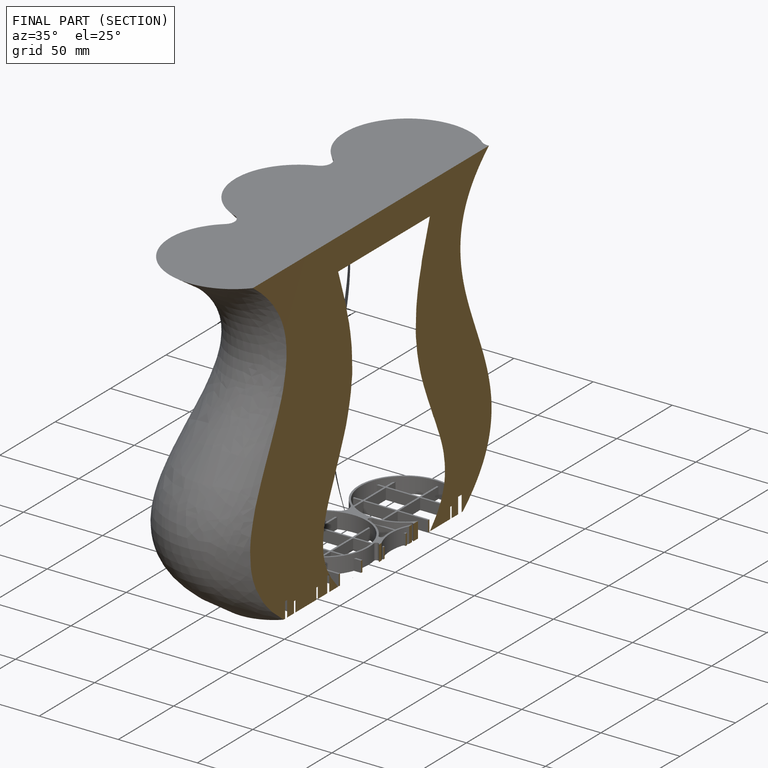
[diagram: finished part — half-section view (interior)]
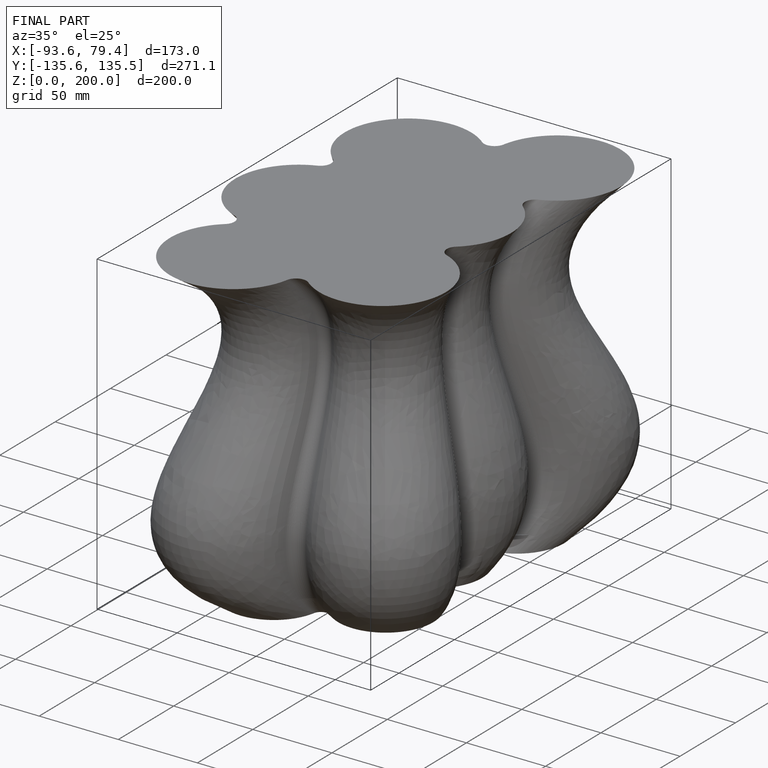
[diagram: finished part — iso view with bounding-box wireframe]
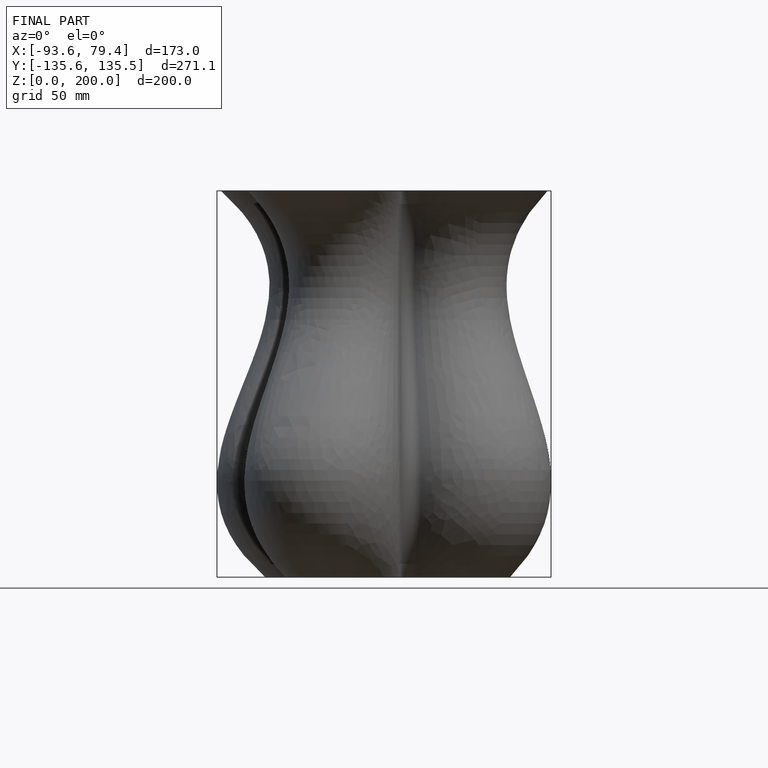
[diagram: finished part — front view with bounding-box wireframe]
